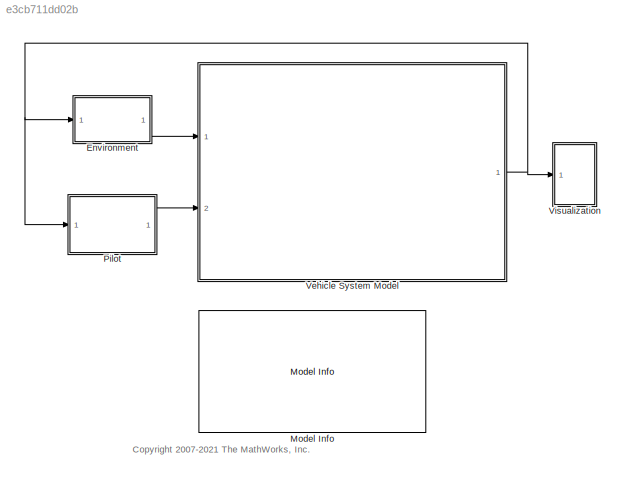
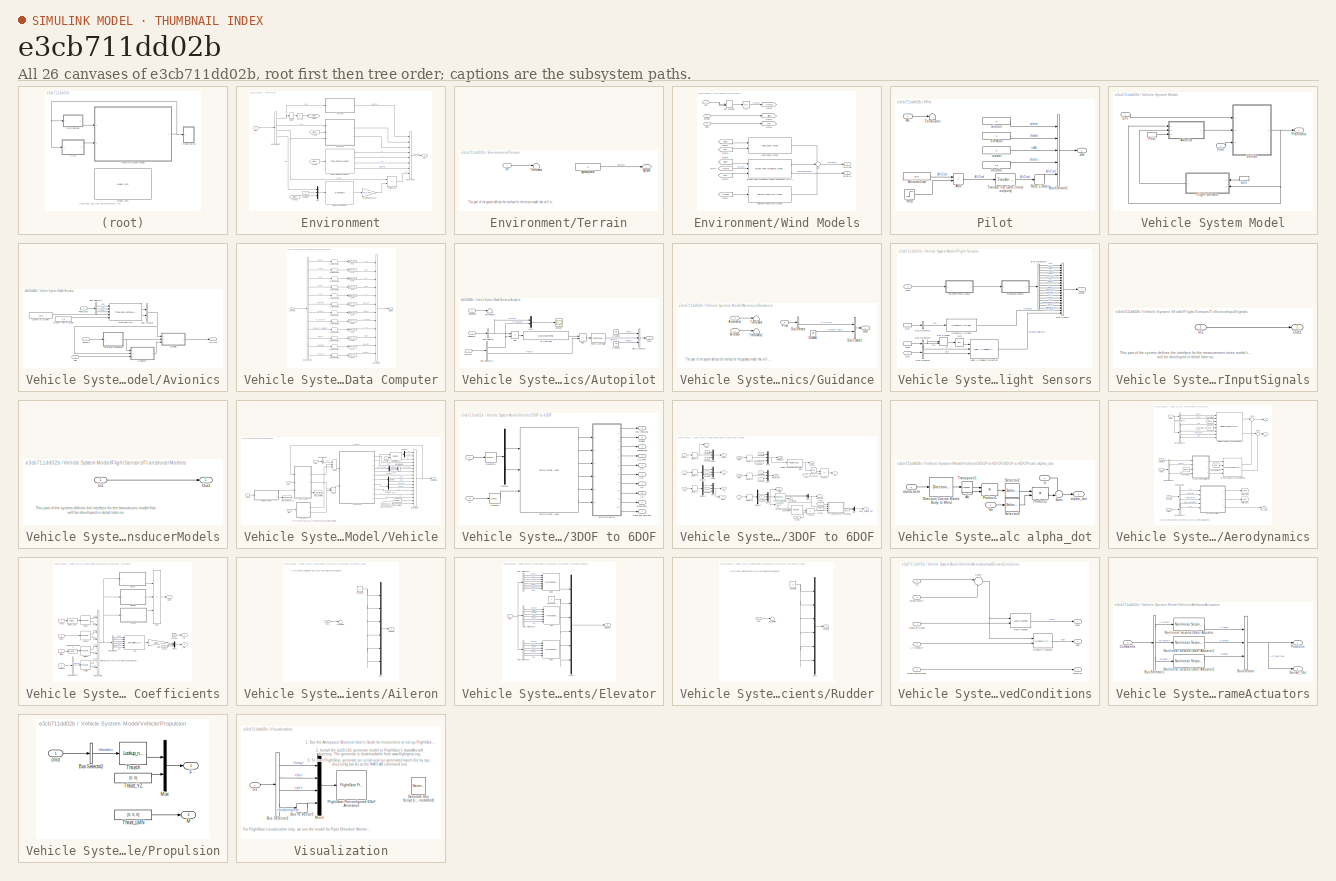
[diagram: thumbnail index - all 26 canvases of the model, root first then tree order]
MODEL slx_e3cb711dd02b
KIND model
CONFIG AbsTol = auto
CONFIG EnableMultiTasking = on
CONFIG FixedStep = auto
CONFIG MaxStep = auto
CONFIG MinStep = auto
CONFIG PreLoadFcn = load asbSkyHoggData.mat
CONFIG RelTol = 1e-3
CONFIG SampleTimeConstraint = Unconstrained
CONFIG Solver = ode45
CONFIG SolverName = ode45
CONFIG StartTime = 0.0
CONFIG StopFcn = open_system('asbSkyHogg/Vehicle System Model/Avionics/Autopilot/Altitude')
CONFIG StopTime = 100
WORKSPACE source: mxarray member
WORKSPACE LatLong0 = [45 120]
WORKSPACE Sref = 20.9775
WORKSPACE Tc = 0.0166666666667
WORKSPACE Thrust = 2512.574
WORKSPACE Ts = 0
WORKSPACE V0 = 93.1047999839
WORKSPACE alpha0 = 0.0170924
WORKSPACE alt0 = 2000
WORKSPACE beta0 = 0
WORKSPACE bref = 12.5425
WORKSPACE cbar = 1.7526
WORKSPACE cg_0 = [2.158 0 0]
WORKSPACE g_0 = [0 0 9.81]
WORKSPACE heading0 = 0
WORKSPACE inertia = [5787.969 0 -117.64 0 6928.93 0 117.64 0 11578.329]
WORKSPACE mass = 1299.21378662
WORKSPACE maxdef_aileron = 30
WORKSPACE maxdef_elevator = 20
WORKSPACE maxdef_rudder = 60
WORKSPACE mindef_aileron = -30
WORKSPACE mindef_elevator = -20
WORKSPACE mindef_rudder = -60
WORKSPACE mpoperpoint: opcond.OperatingPoint (value not decoded)
WORKSPACE theta0 = 0.017092
WORKSPACE wn_act = 44
WORKSPACE wy0 = 0
WORKSPACE z_act = 0.7
BLOCK [SubSystem] Environment
  Ports = [1, 1]
  TreatAsAtomicUnit = on
BLOCK [BusCreator] Environment/Bus Creator
  DisplayOption = bar
  InheritFromInputs = on
  Inputs = 'hground','WindVelocity','WindAngularRates','To','a','Po','AirDensity','Fg'
  Ports = [8, 1]
BLOCK [BusSelector] Environment/Bus Selector
  OutputSignals = Xe,Ve,DCM,lat
  Ports = [1, 4]
BLOCK [Reference] Environment/COESA Atmosphere Model  REF=aerolibatmos2/COESA Atmosphere Model
  Ports = [1, 4]
  SourceBlock = aerolibatmos2/COESA Atmosphere Model
  SourceType = Atmosphere Model
BLOCK [Outport] Environment/Env
  InitialOutput = 0
  VectorParamsAs1DForOutWhenUnconnected = off
BLOCK [From] Environment/From1
  GotoTag = Altitude
BLOCK [From] Environment/From2
  GotoTag = Altitude
BLOCK [From] Environment/From4
  GotoTag = Altitude
BLOCK [Goto] Environment/Goto6
  GotoTag = Altitude
BLOCK [Gain] Environment/Gravity in Earth Axes
  Gain = [0 0 mass]
  OutDataTypeStr = Inherit: Same as input
  ParamDataTypeStr = Inherit: Same as input
  SaturateOnIntegerOverflow = on
BLOCK [Selector] Environment/Height
  IndexMode = Zero-based
  IndexOptions = Index vector (dialog)
  Indices = 2
  InputPortWidth = 3
  OutputSizes = 1
  Ports = [1, 1]
BLOCK [Constant] Environment/Longitude
  Value = 0
BLOCK [Mux] Environment/Mux
  DisplayOption = bar
  Inputs = 3
  Ports = [3, 1]
BLOCK [SubSystem] Environment/Terrain
  Ports = [1, 1]
BLOCK [Terminator] Environment/Terrain/Terminator
BLOCK [Inport] Environment/Terrain/Xe
BLOCK [Outport] Environment/Terrain/hground
  Unit = m
  VectorParamsAs1DForOutWhenUnconnected = off
BLOCK [Constant] Environment/Terrain/hground_value
  OutDataTypeStr = single
  Value = 0
BLOCK [Product] Environment/To Wind Axes
  InputSameDT = on
  Multiplication = Matrix(*)
  OutDataTypeStr = Inherit: Same as first input
  Ports = [2, 1]
  SaturateOnIntegerOverflow = on
BLOCK [GravityWGS84] Environment/WGS84 Gravity Model  
  Ports = [1, 1]
BLOCK [SubSystem] Environment/Wind Models
  Ports = [3, 2]
BLOCK [Inport] Environment/Wind Models/Altitude
  NameLocation = top
  Port = 2
BLOCK [Inport] Environment/Wind Models/DCM
  Port = 3
BLOCK [Reference] Environment/Wind Models/Discrete Wind Gust Model  REF=aerolibwind2/Discrete Wind Gust Model
  Ports = [1, 1]
  SourceBlock = aerolibwind2/Discrete Wind Gust Model
  SourceType = Discrete Wind Gust Model
BLOCK [DotProduct] Environment/Wind Models/Dot Product
  InputSameDT = off
  OutDataTypeStr = Inherit: Inherit via internal rule
BLOCK [Reference] Environment/Wind Models/Dryden Wind Turbulence Model (Continuous (+q +r))  REF=aerolibwind2/Dryden Wind Turbulence Model 
(Continuous (+q -r))
  Ports = [3, 2]
  SourceBlock = aerolibwind2/Dryden Wind Turbulence Model \n(Continuous (+q -r))
  SourceType = Wind Turbulence Model
BLOCK [From] Environment/Wind Models/From1
  GotoTag = Airspeed
BLOCK [From] Environment/Wind Models/From2
  GotoTag = Altitude
BLOCK [From] Environment/Wind Models/From3
  GotoTag = DCM
BLOCK [From] Environment/Wind Models/From4
  GotoTag = Airspeed
BLOCK [From] Environment/Wind Models/From5
  GotoTag = DCM
BLOCK [From] Environment/Wind Models/From6
  GotoTag = Altitude
BLOCK [Goto] Environment/Wind Models/Goto1
  GotoTag = Altitude
BLOCK [Goto] Environment/Wind Models/Goto2
  GotoTag = DCM
BLOCK [Goto] Environment/Wind Models/Goto6
  GotoTag = Airspeed
BLOCK [Sum] Environment/Wind Models/Sum
  InputSameDT = on
  Inputs = +++
  OutDataTypeStr = Inherit: Same as first input
  Ports = [3, 1]
  SaturateOnIntegerOverflow = on
BLOCK [Inport] Environment/Wind Models/Ve
BLOCK [Reference] Environment/Wind Models/Wind Shear Model  REF=aerolibwind2/Wind Shear Model
  Ports = [2, 1]
  SourceBlock = aerolibwind2/Wind Shear Model
  SourceType = Wind Shear Model
BLOCK [Outport] Environment/Wind Models/pg,qg,rg
  Port = 2
  Unit = rad/second
  VectorParamsAs1DForOutWhenUnconnected = off
BLOCK [Outport] Environment/Wind Models/ug,vg,wg
  Unit = m/s
  VectorParamsAs1DForOutWhenUnconnected = off
BLOCK [Sqrt] Environment/Wind Models/vt
BLOCK [Inport] Environment/plant
BLOCK [Abs] Environment/z-->h
BLOCK [Reference] Model Info  REF=simulink/Model-Wide
Utilities/Model Info
  Ports = []
  SourceBlock = simulink/Model-Wide\nUtilities/Model Info
  SourceType = CMBlock
BLOCK [SubSystem] Pilot
  Ports = [1, 1]
  TreatAsAtomicUnit = on
BLOCK [Inport] Pilot/AC
BLOCK [Sum] Pilot/Add
  IconShape = rectangular
  Ports = [2, 1]
BLOCK [Constant] Pilot/AltitudeCmd
  OutDataTypeStr = double
  Value = alt0
BLOCK [BusCreator] Pilot/Bus Creator1
  DisplayOption = bar
  InheritFromInputs = on
  Inputs = 5
  Ports = [5, 1]
BLOCK [RateLimiter] Pilot/Rate Limiter
  InitialCondition = 2000
  RisingSlewLimit = 500/3/60
  SampleTimeMode = inherited
BLOCK [Step] Pilot/Step
  After = 50
  SampleTime = 0
  Time = 5
BLOCK [Terminator] Pilot/Terminator
BLOCK [Reference] Pilot/Transfer Fcn (with initial outputs)  REF=simulink_extras/Additional
Linear/Transfer Fcn
(with initial outputs)
  Ports = [1, 1]
  SourceBlock = simulink_extras/Additional\nLinear/Transfer Fcn\n(with initial outputs)
  SourceType = Transfer Function with Initial Outputs
BLOCK [Constant] Pilot/aileron
  OutDataTypeStr = single
  Value = 0
BLOCK [Outport] Pilot/cmd
  VectorParamsAs1DForOutWhenUnconnected = off
BLOCK [Constant] Pilot/elevator
  OutDataTypeStr = single
  Value = 0
BLOCK [Constant] Pilot/rudder
  OutDataTypeStr = single
  Value = 0
BLOCK [Constant] Pilot/throttle
  OutDataTypeStr = double
  Value = 0.5
BLOCK [SubSystem] Vehicle System Model
  Ports = [2, 1]
BLOCK [SubSystem] Vehicle System Model/Avionics
  Ports = [3, 1]
BLOCK [Outport] Vehicle System Model/Avionics/ActCmd
  VectorParamsAs1DForOutWhenUnconnected = off
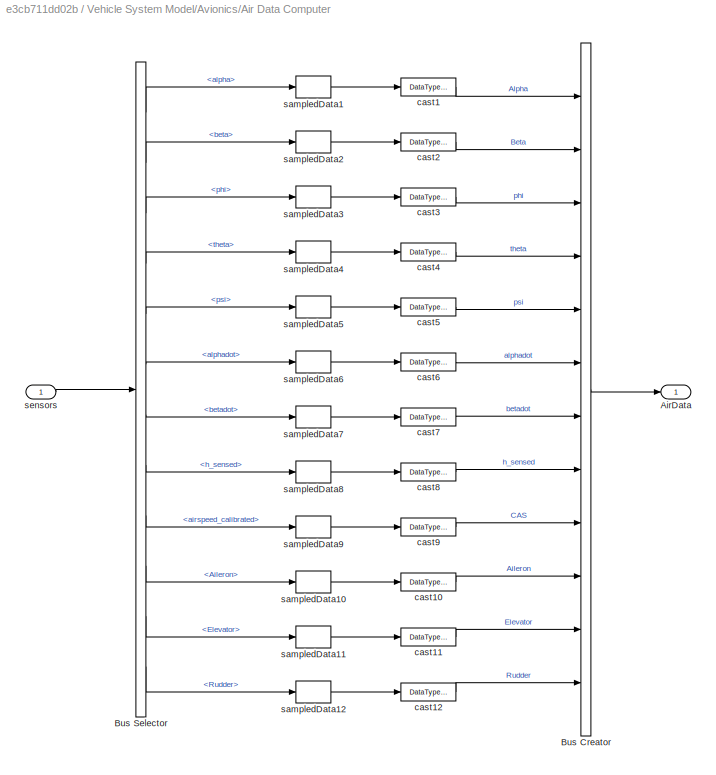
BLOCK [SubSystem] Vehicle System Model/Avionics/Air Data Computer
  Ports = [1, 1]
  TreatAsAtomicUnit = on
BLOCK [Outport] Vehicle System Model/Avionics/Air Data Computer/AirData
  VectorParamsAs1DForOutWhenUnconnected = off
BLOCK [BusCreator] Vehicle System Model/Avionics/Air Data Computer/Bus Creator
  DisplayOption = bar
  InheritFromInputs = on
  Inputs = 12
  Ports = [12, 1]
BLOCK [BusSelector] Vehicle System Model/Avionics/Air Data Computer/Bus Selector
  OutputSignals = alpha,beta,phi,theta,psi,alphadot,betadot,h_sensed,airspeed_calibrated,Aileron,Elevator,Rudder
  Ports = [1, 12]
BLOCK [DataTypeConversion] Vehicle System Model/Avionics/Air Data Computer/cast1
  OutDataTypeStr = double
  RndMeth = Floor
  SaturateOnIntegerOverflow = off
BLOCK [DataTypeConversion] Vehicle System Model/Avionics/Air Data Computer/cast10
  OutDataTypeStr = double
  RndMeth = Floor
  SaturateOnIntegerOverflow = off
BLOCK [DataTypeConversion] Vehicle System Model/Avionics/Air Data Computer/cast11
  OutDataTypeStr = double
  RndMeth = Floor
  SaturateOnIntegerOverflow = off
BLOCK [DataTypeConversion] Vehicle System Model/Avionics/Air Data Computer/cast12
  OutDataTypeStr = double
  RndMeth = Floor
  SaturateOnIntegerOverflow = off
BLOCK [DataTypeConversion] Vehicle System Model/Avionics/Air Data Computer/cast2
  OutDataTypeStr = double
  RndMeth = Floor
  SaturateOnIntegerOverflow = off
BLOCK [DataTypeConversion] Vehicle System Model/Avionics/Air Data Computer/cast3
  OutDataTypeStr = double
  RndMeth = Floor
  SaturateOnIntegerOverflow = off
BLOCK [DataTypeConversion] Vehicle System Model/Avionics/Air Data Computer/cast4
  OutDataTypeStr = double
  RndMeth = Floor
  SaturateOnIntegerOverflow = off
BLOCK [DataTypeConversion] Vehicle System Model/Avionics/Air Data Computer/cast5
  OutDataTypeStr = double
  RndMeth = Floor
  SaturateOnIntegerOverflow = off
BLOCK [DataTypeConversion] Vehicle System Model/Avionics/Air Data Computer/cast6
  OutDataTypeStr = double
  RndMeth = Floor
  SaturateOnIntegerOverflow = off
BLOCK [DataTypeConversion] Vehicle System Model/Avionics/Air Data Computer/cast7
  OutDataTypeStr = double
  RndMeth = Floor
  SaturateOnIntegerOverflow = off
BLOCK [DataTypeConversion] Vehicle System Model/Avionics/Air Data Computer/cast8
  OutDataTypeStr = double
  RndMeth = Floor
  SaturateOnIntegerOverflow = off
BLOCK [DataTypeConversion] Vehicle System Model/Avionics/Air Data Computer/cast9
  OutDataTypeStr = double
  RndMeth = Floor
  SaturateOnIntegerOverflow = off
BLOCK [ZeroOrderHold] Vehicle System Model/Avionics/Air Data Computer/sampledData1
  SampleTime = Tc
BLOCK [ZeroOrderHold] Vehicle System Model/Avionics/Air Data Computer/sampledData10
  SampleTime = Tc
BLOCK [ZeroOrderHold] Vehicle System Model/Avionics/Air Data Computer/sampledData11
  SampleTime = Tc
BLOCK [ZeroOrderHold] Vehicle System Model/Avionics/Air Data Computer/sampledData12
  SampleTime = Tc
BLOCK [ZeroOrderHold] Vehicle System Model/Avionics/Air Data Computer/sampledData2
  SampleTime = Tc
BLOCK [ZeroOrderHold] Vehicle System Model/Avionics/Air Data Computer/sampledData3
  SampleTime = Tc
BLOCK [ZeroOrderHold] Vehicle System Model/Avionics/Air Data Computer/sampledData4
  SampleTime = Tc
BLOCK [ZeroOrderHold] Vehicle System Model/Avionics/Air Data Computer/sampledData5
  SampleTime = Tc
BLOCK [ZeroOrderHold] Vehicle System Model/Avionics/Air Data Computer/sampledData6
  SampleTime = Tc
BLOCK [ZeroOrderHold] Vehicle System Model/Avionics/Air Data Computer/sampledData7
  SampleTime = Tc
BLOCK [ZeroOrderHold] Vehicle System Model/Avionics/Air Data Computer/sampledData8
  SampleTime = Tc
BLOCK [ZeroOrderHold] Vehicle System Model/Avionics/Air Data Computer/sampledData9
  SampleTime = Tc
BLOCK [Inport] Vehicle System Model/Avionics/Air Data Computer/sensors
  SampleTime = Ts
BLOCK [SubSystem] Vehicle System Model/Avionics/Autopilot
  Ports = [3, 1]
BLOCK [Sum] Vehicle System Model/Avionics/Autopilot/Add
  IconShape = rectangular
  Inputs = +-
  Ports = [2, 1]
BLOCK [Sum] Vehicle System Model/Avionics/Autopilot/Add1
  IconShape = rectangular
  Inputs = +-
  Ports = [2, 1]
BLOCK [Inport] Vehicle System Model/Avionics/Autopilot/AirData
  Port = 2
BLOCK [DiscreteZeroPole] Vehicle System Model/Avionics/Autopilot/Alt Controller
  Gain = 0.0337283240400683
  Poles = [1;0.920841826994512]
  SampleTime = Tc
  Zeros = [0.998853192323097;0.977076159863424]
BLOCK [Scope] Vehicle System Model/Avionics/Autopilot/Altitude
  Floating = off
  NumInputPorts = 1
  Ports = [1]
  ScopeSpecificationString = Simulink.scopes.TimeScopeBlockCfg('CurrentConfiguration', extmgr.ConfigurationSet(extmgr.Configuration('Core','General UI',true),extmgr.Configuration('Core','Source UI',true),extmgr.Configuration('Sources','WiredSimulink',true,'DataLoggingSaveFormat','StructureWithTime','DataLoggingDecimation','5','DataLoggingDecimateData',true),extmgr.Configuration('Visuals','Time Domain',true,'SerializedDisplays...<+1645ch>
BLOCK [Inport] Vehicle System Model/Avionics/Autopilot/AvionicBus
BLOCK [BusCreator] Vehicle System Model/Avionics/Autopilot/Bus Creator1
  DisplayOption = bar
  InheritFromInputs = on
  Inputs = 3
  Ports = [3, 1]
BLOCK [BusSelector] Vehicle System Model/Avionics/Autopilot/Bus Selector
  OutputSignals = AltCmd
  Ports = [1, 1]
BLOCK [BusSelector] Vehicle System Model/Avionics/Autopilot/Bus Selector1
  OutputSignals = h_sensed,theta
  Ports = [1, 2]
BLOCK [Ground] Vehicle System Model/Avionics/Autopilot/Ground
BLOCK [Ground] Vehicle System Model/Avionics/Autopilot/Ground2
BLOCK [Mux] Vehicle System Model/Avionics/Autopilot/Mux
  DisplayOption = bar
  Inputs = 2
  Ports = [2, 1]
BLOCK [Terminator] Vehicle System Model/Avionics/Autopilot/Terminator
BLOCK [DiscreteZeroPole] Vehicle System Model/Avionics/Autopilot/Theta Controller
  Gain = -261.8699347622
  Poles = 1
  SampleTime = Tc
  Zeros = 0.999268009521977
BLOCK [Outport] Vehicle System Model/Avionics/Autopilot/cmd
  VectorParamsAs1DForOutWhenUnconnected = off
BLOCK [Inport] Vehicle System Model/Avionics/Autopilot/guidance
  Port = 3
BLOCK [BusCreator] Vehicle System Model/Avionics/Bus Creator
  DisplayOption = bar
  InheritFromInputs = on
  Inputs = 2
  Ports = [2, 1]
BLOCK [BusSelector] Vehicle System Model/Avionics/Bus Selector1
  OutputSignals = Ab,w,wdot
  Ports = [1, 3]
BLOCK [Constant] Vehicle System Model/Avionics/Center of Gravity
  SampleTime = Tc
  Value = cg_0
BLOCK [Constant] Vehicle System Model/Avionics/Gravity (not in Accels)
  SampleTime = Tc
  Value = g_0
BLOCK [SubSystem] Vehicle System Model/Avionics/Guidance
  Ports = [3, 1]
BLOCK [Inport] Vehicle System Model/Avionics/Guidance/AirData
BLOCK [Inport] Vehicle System Model/Avionics/Guidance/AvionicBus
  Port = 2
BLOCK [BusCreator] Vehicle System Model/Avionics/Guidance/Bus Creator1
  DisplayOption = bar
  InheritFromInputs = on
  Inputs = 2
  Ports = [2, 1]
BLOCK [BusSelector] Vehicle System Model/Avionics/Guidance/Bus Selector
  OutputSignals = AltCmd
  Ports = [1, 1]
BLOCK [Ground] Vehicle System Model/Avionics/Guidance/Ground1
BLOCK [Inport] Vehicle System Model/Avionics/Guidance/Pilot
  Port = 3
BLOCK [Terminator] Vehicle System Model/Avionics/Guidance/Terminator
BLOCK [Terminator] Vehicle System Model/Avionics/Guidance/Terminator1
BLOCK [Outport] Vehicle System Model/Avionics/Guidance/cmd
  VectorParamsAs1DForOutWhenUnconnected = off
BLOCK [Inport] Vehicle System Model/Avionics/Pilot
  Port = 3
BLOCK [Inport] Vehicle System Model/Avionics/PlantData
BLOCK [Inport] Vehicle System Model/Avionics/Sensors
  Port = 2
BLOCK [Reference] Vehicle System Model/Avionics/Three-axis IMU  REF=aerolibnav/Three-axis Inertial
Measurement Unit
  Ports = [5, 2]
  SourceBlock = aerolibnav/Three-axis Inertial\nMeasurement Unit
  SourceType = Three-axis Inertial Measurement Unit
BLOCK [Inport] Vehicle System Model/Env
BLOCK [InportShadow] Vehicle System Model/Env 
BLOCK [SubSystem] Vehicle System Model/Flight Sensors
  Ports = [2, 1]
BLOCK [BusCreator] Vehicle System Model/Flight Sensors/Bus Creator
  DisplayOption = bar
  InheritFromInputs = on
  Inputs = 20
  Ports = [20, 1]
BLOCK [BusSelector] Vehicle System Model/Flight Sensors/Bus Selector
  OutputSignals = a,Po
  Ports = [1, 2]
BLOCK [BusSelector] Vehicle System Model/Flight Sensors/Bus Selector1
  OutputSignals = Po
  Ports = [1, 1]
BLOCK [BusSelector] Vehicle System Model/Flight Sensors/Bus Selector2
  OutputSignals = Vb
  Ports = [1, 1]
BLOCK [BusSelector] Vehicle System Model/Flight Sensors/Bus Selector3
  OutputSignals = Ve,Xe,body angles.phi,body angles.theta,body angles.psi,DCM,Vb,alpha,beta,alphadot,betadot,w,wdot,Ab,WindAngularRates,Act_positions.Aileron,Act_positions.Elevator,Act_positions.Rudder
  Ports = [1, 18]
BLOCK [DotProduct] Vehicle System Model/Flight Sensors/Dot Product
  OutDataTypeStr = Inherit: Inherit via internal rule
BLOCK [Inport] Vehicle System Model/Flight Sensors/Env
BLOCK [InportShadow] Vehicle System Model/Flight Sensors/Env 
BLOCK [Reference] Vehicle System Model/Flight Sensors/Ideal Airspeed Correction  REF=aerolibasang/Ideal Airspeed Correction
  Ports = [3, 1]
  SourceBlock = aerolibasang/Ideal Airspeed Correction
  SourceType = Ideal Airspeed Correction
BLOCK [Reference] Vehicle System Model/Flight Sensors/Pressure Altitude  REF=aerolibatmos2/Pressure Altitude
  Ports = [1, 1]
  SourceBlock = aerolibatmos2/Pressure Altitude
  SourceType = Pressure Altitude
BLOCK [Sqrt] Vehicle System Model/Flight Sensors/Sqrt
BLOCK [SubSystem] Vehicle System Model/Flight Sensors/ToSensorInputSignals
  Ports = [1, 1]
BLOCK [Inport] Vehicle System Model/Flight Sensors/ToSensorInputSignals/In1
BLOCK [Outport] Vehicle System Model/Flight Sensors/ToSensorInputSignals/Out1
  VectorParamsAs1DForOutWhenUnconnected = off
BLOCK [SubSystem] Vehicle System Model/Flight Sensors/TransducerModels
  Ports = [1, 1]
BLOCK [Inport] Vehicle System Model/Flight Sensors/TransducerModels/In1
BLOCK [Outport] Vehicle System Model/Flight Sensors/TransducerModels/Out1
  VectorParamsAs1DForOutWhenUnconnected = off
BLOCK [Inport] Vehicle System Model/Flight Sensors/plant
  Port = 2
BLOCK [InportShadow] Vehicle System Model/Flight Sensors/plant 
  Port = 2
BLOCK [Outport] Vehicle System Model/Flight Sensors/sensed
  VectorParamsAs1DForOutWhenUnconnected = off
BLOCK [Inport] Vehicle System Model/Pilot
  Port = 2
BLOCK [InportShadow] Vehicle System Model/Pilot 
  Port = 2
BLOCK [Outport] Vehicle System Model/PlantData
  VectorParamsAs1DForOutWhenUnconnected = off
BLOCK [SubSystem] Vehicle System Model/Vehicle
  Ports = [3, 1]
BLOCK [SubSystem] Vehicle System Model/Vehicle/3DOF to 6DOF
  Ports = [2, 10]
BLOCK [Reference] Vehicle System Model/Vehicle/3DOF to 6DOF/3DOF (Body Axes)  REF=shared3dof/3DOF (Body Axes)
  Ports = [3, 6]
  SourceBlock = shared3dof/3DOF (Body Axes)
  SourceType = 3DOF EoM
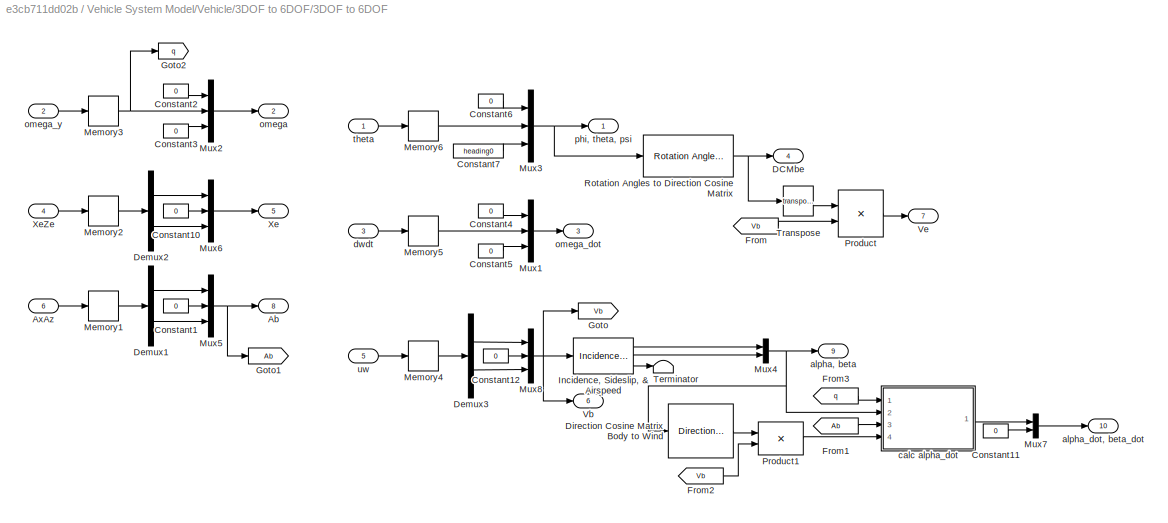
BLOCK [SubSystem] Vehicle System Model/Vehicle/3DOF to 6DOF/3DOF to 6DOF
  Ports = [6, 10]
BLOCK [Outport] Vehicle System Model/Vehicle/3DOF to 6DOF/3DOF to 6DOF/Ab
  Port = 8
  Unit = m/s^2
  VectorParamsAs1DForOutWhenUnconnected = off
BLOCK [Inport] Vehicle System Model/Vehicle/3DOF to 6DOF/3DOF to 6DOF/AxAz
  Port = 6
BLOCK [Constant] Vehicle System Model/Vehicle/3DOF to 6DOF/3DOF to 6DOF/Constant1
  Value = 0
BLOCK [Constant] Vehicle System Model/Vehicle/3DOF to 6DOF/3DOF to 6DOF/Constant10
  Value = 0
BLOCK [Constant] Vehicle System Model/Vehicle/3DOF to 6DOF/3DOF to 6DOF/Constant11
  Value = 0
BLOCK [Constant] Vehicle System Model/Vehicle/3DOF to 6DOF/3DOF to 6DOF/Constant12
  Value = 0
BLOCK [Constant] Vehicle System Model/Vehicle/3DOF to 6DOF/3DOF to 6DOF/Constant2
  Value = 0
BLOCK [Constant] Vehicle System Model/Vehicle/3DOF to 6DOF/3DOF to 6DOF/Constant3
  Value = 0
BLOCK [Constant] Vehicle System Model/Vehicle/3DOF to 6DOF/3DOF to 6DOF/Constant4
  Value = 0
BLOCK [Constant] Vehicle System Model/Vehicle/3DOF to 6DOF/3DOF to 6DOF/Constant5
  Value = 0
BLOCK [Constant] Vehicle System Model/Vehicle/3DOF to 6DOF/3DOF to 6DOF/Constant6
  Value = 0
BLOCK [Constant] Vehicle System Model/Vehicle/3DOF to 6DOF/3DOF to 6DOF/Constant7
  Value = heading0
BLOCK [Outport] Vehicle System Model/Vehicle/3DOF to 6DOF/3DOF to 6DOF/DCMbe
  Port = 4
  VectorParamsAs1DForOutWhenUnconnected = off
BLOCK [Demux] Vehicle System Model/Vehicle/3DOF to 6DOF/3DOF to 6DOF/Demux1
  Outputs = 2
  Ports = [1, 2]
BLOCK [Demux] Vehicle System Model/Vehicle/3DOF to 6DOF/3DOF to 6DOF/Demux2
  Outputs = 2
  Ports = [1, 2]
BLOCK [Demux] Vehicle System Model/Vehicle/3DOF to 6DOF/3DOF to 6DOF/Demux3
  Outputs = 2
  Ports = [1, 2]
BLOCK [Reference] Vehicle System Model/Vehicle/3DOF to 6DOF/3DOF to 6DOF/Direction Cosine Matrix Body to Wind  REF=aerolibtransform2/Direction Cosine Matrix
Body to Wind
  Ports = [1, 1]
  SourceBlock = aerolibtransform2/Direction Cosine Matrix\nBody to Wind
  SourceType = DCM Body to Wind
BLOCK [From] Vehicle System Model/Vehicle/3DOF to 6DOF/3DOF to 6DOF/From
  GotoTag = Vb
BLOCK [From] Vehicle System Model/Vehicle/3DOF to 6DOF/3DOF to 6DOF/From1
  GotoTag = Ab
BLOCK [From] Vehicle System Model/Vehicle/3DOF to 6DOF/3DOF to 6DOF/From2
  GotoTag = Vb
BLOCK [From] Vehicle System Model/Vehicle/3DOF to 6DOF/3DOF to 6DOF/From3
  GotoTag = q
BLOCK [Goto] Vehicle System Model/Vehicle/3DOF to 6DOF/3DOF to 6DOF/Goto
  GotoTag = Vb
BLOCK [Goto] Vehicle System Model/Vehicle/3DOF to 6DOF/3DOF to 6DOF/Goto1
  GotoTag = Ab
BLOCK [Goto] Vehicle System Model/Vehicle/3DOF to 6DOF/3DOF to 6DOF/Goto2
  GotoTag = q
BLOCK [Reference] Vehicle System Model/Vehicle/3DOF to 6DOF/3DOF to 6DOF/Incidence, Sideslip, & Airspeed  REF=aerolibasang/Incidence, Sideslip,
& Airspeed
  Ports = [1, 3]
  SourceBlock = aerolibasang/Incidence, Sideslip,\n& Airspeed
  SourceType = Incidence,Sideslip,&Airspeed
BLOCK [Memory] Vehicle System Model/Vehicle/3DOF to 6DOF/3DOF to 6DOF/Memory1
BLOCK [Memory] Vehicle System Model/Vehicle/3DOF to 6DOF/3DOF to 6DOF/Memory2
  InitialCondition = [0 -alt0]
BLOCK [Memory] Vehicle System Model/Vehicle/3DOF to 6DOF/3DOF to 6DOF/Memory3
  InitialCondition = wy0
BLOCK [Memory] Vehicle System Model/Vehicle/3DOF to 6DOF/3DOF to 6DOF/Memory4
  InitialCondition = [V0 0]
BLOCK [Memory] Vehicle System Model/Vehicle/3DOF to 6DOF/3DOF to 6DOF/Memory5
BLOCK [Memory] Vehicle System Model/Vehicle/3DOF to 6DOF/3DOF to 6DOF/Memory6
  InitialCondition = theta0
BLOCK [Mux] Vehicle System Model/Vehicle/3DOF to 6DOF/3DOF to 6DOF/Mux1
  DisplayOption = bar
  Inputs = 3
  Ports = [3, 1]
BLOCK [Mux] Vehicle System Model/Vehicle/3DOF to 6DOF/3DOF to 6DOF/Mux2
  DisplayOption = bar
  Inputs = 3
  Ports = [3, 1]
BLOCK [Mux] Vehicle System Model/Vehicle/3DOF to 6DOF/3DOF to 6DOF/Mux3
  DisplayOption = bar
  Inputs = 3
  Ports = [3, 1]
BLOCK [Mux] Vehicle System Model/Vehicle/3DOF to 6DOF/3DOF to 6DOF/Mux4
  DisplayOption = bar
  Inputs = 2
  Ports = [2, 1]
BLOCK [Mux] Vehicle System Model/Vehicle/3DOF to 6DOF/3DOF to 6DOF/Mux5
  DisplayOption = bar
  Inputs = 3
  Ports = [3, 1]
BLOCK [Mux] Vehicle System Model/Vehicle/3DOF to 6DOF/3DOF to 6DOF/Mux6
  DisplayOption = bar
  Inputs = 3
  Ports = [3, 1]
BLOCK [Mux] Vehicle System Model/Vehicle/3DOF to 6DOF/3DOF to 6DOF/Mux7
  DisplayOption = bar
  Inputs = 2
  Ports = [2, 1]
BLOCK [Mux] Vehicle System Model/Vehicle/3DOF to 6DOF/3DOF to 6DOF/Mux8
  DisplayOption = bar
  Inputs = 3
  Ports = [3, 1]
BLOCK [Product] Vehicle System Model/Vehicle/3DOF to 6DOF/3DOF to 6DOF/Product
  InputSameDT = on
  Multiplication = Matrix(*)
  OutDataTypeStr = Inherit: Same as first input
  Ports = [2, 1]
  SaturateOnIntegerOverflow = on
BLOCK [Product] Vehicle System Model/Vehicle/3DOF to 6DOF/3DOF to 6DOF/Product1
  InputSameDT = on
  Multiplication = Matrix(*)
  OutDataTypeStr = Inherit: Same as first input
  Ports = [2, 1]
  SaturateOnIntegerOverflow = on
BLOCK [Reference] Vehicle System Model/Vehicle/3DOF to 6DOF/3DOF to 6DOF/Rotation Angles to Direction Cosine Matrix  REF=sharedtransform/Rotation Angles to
Direction Cosine Matrix
  AttributesFormatString = Rotation Order: %<rotationOrder>
  Ports = [1, 1]
  SourceBlock = sharedtransform/Rotation Angles to\nDirection Cosine Matrix
  SourceType = Ang2DCM
BLOCK [Terminator] Vehicle System Model/Vehicle/3DOF to 6DOF/3DOF to 6DOF/Terminator
BLOCK [Math] Vehicle System Model/Vehicle/3DOF to 6DOF/3DOF to 6DOF/Transpose
  Operator = transpose
  Ports = [1, 1]
  SignedPower = on
BLOCK [Outport] Vehicle System Model/Vehicle/3DOF to 6DOF/3DOF to 6DOF/Vb
  Port = 6
  Unit = m/s
  VectorParamsAs1DForOutWhenUnconnected = off
BLOCK [Outport] Vehicle System Model/Vehicle/3DOF to 6DOF/3DOF to 6DOF/Ve
  Port = 7
  Unit = m/s
  VectorParamsAs1DForOutWhenUnconnected = off
BLOCK [Outport] Vehicle System Model/Vehicle/3DOF to 6DOF/3DOF to 6DOF/Xe
  Port = 5
  Unit = m
  VectorParamsAs1DForOutWhenUnconnected = off
BLOCK [Inport] Vehicle System Model/Vehicle/3DOF to 6DOF/3DOF to 6DOF/XeZe
  Port = 4
BLOCK [Outport] Vehicle System Model/Vehicle/3DOF to 6DOF/3DOF to 6DOF/alpha, beta
  Port = 9
  Unit = rad
  VectorParamsAs1DForOutWhenUnconnected = off
BLOCK [Outport] Vehicle System Model/Vehicle/3DOF to 6DOF/3DOF to 6DOF/alpha_dot, beta_dot
  Port = 10
  Unit = rad/s
  VectorParamsAs1DForOutWhenUnconnected = off
BLOCK [SubSystem] Vehicle System Model/Vehicle/3DOF to 6DOF/3DOF to 6DOF/calc alpha_dot
  Ports = [4, 1]
BLOCK [Inport] Vehicle System Model/Vehicle/3DOF to 6DOF/3DOF to 6DOF/calc alpha_dot/Ab
  Port = 3
BLOCK [Reference] Vehicle System Model/Vehicle/3DOF to 6DOF/3DOF to 6DOF/calc alpha_dot/Direction Cosine Matrix Body to Wind  REF=aerolibtransform2/Direction Cosine Matrix
Body to Wind
  Ports = [1, 1]
  SourceBlock = aerolibtransform2/Direction Cosine Matrix\nBody to Wind
  SourceType = DCM Body to Wind
BLOCK [Product] Vehicle System Model/Vehicle/3DOF to 6DOF/3DOF to 6DOF/calc alpha_dot/Product1
  InputSameDT = on
  Multiplication = Matrix(*)
  OutDataTypeStr = Inherit: Same as first input
  Ports = [2, 1]
  SaturateOnIntegerOverflow = on
BLOCK [Product] Vehicle System Model/Vehicle/3DOF to 6DOF/3DOF to 6DOF/calc alpha_dot/Product2
  InputSameDT = on
  Inputs = */
  OutDataTypeStr = Inherit: Same as first input
  Ports = [2, 1]
  SaturateOnIntegerOverflow = on
BLOCK [Selector] Vehicle System Model/Vehicle/3DOF to 6DOF/3DOF to 6DOF/calc alpha_dot/Selector2
  IndexMode = Zero-based
  IndexOptions = Index vector (dialog)
  Indices = 2
  InputPortWidth = 3
  OutputSizes = 1
  Ports = [1, 1]
BLOCK [Selector] Vehicle System Model/Vehicle/3DOF to 6DOF/3DOF to 6DOF/calc alpha_dot/Selector3
  IndexMode = Zero-based
  IndexOptions = Index vector (dialog)
  Indices = 0
  InputPortWidth = 3
  OutputSizes = 1
  Ports = [1, 1]
BLOCK [Sum] Vehicle System Model/Vehicle/3DOF to 6DOF/3DOF to 6DOF/calc alpha_dot/Sum
  Inputs = ++|
  Ports = [2, 1]
BLOCK [Math] Vehicle System Model/Vehicle/3DOF to 6DOF/3DOF to 6DOF/calc alpha_dot/Transpose1
  Operator = transpose
  Ports = [1, 1]
  SignedPower = on
BLOCK [Inport] Vehicle System Model/Vehicle/3DOF to 6DOF/3DOF to 6DOF/calc alpha_dot/Vw
  Port = 4
BLOCK [Inport] Vehicle System Model/Vehicle/3DOF to 6DOF/3DOF to 6DOF/calc alpha_dot/alpha,beta
  Port = 2
BLOCK [Outport] Vehicle System Model/Vehicle/3DOF to 6DOF/3DOF to 6DOF/calc alpha_dot/alpha_dot
  VectorParamsAs1DForOutWhenUnconnected = off
BLOCK [Inport] Vehicle System Model/Vehicle/3DOF to 6DOF/3DOF to 6DOF/calc alpha_dot/q
BLOCK [Inport] Vehicle System Model/Vehicle/3DOF to 6DOF/3DOF to 6DOF/dwdt
  Port = 3
BLOCK [Outport] Vehicle System Model/Vehicle/3DOF to 6DOF/3DOF to 6DOF/omega
  Port = 2
  Unit = rad/s
  VectorParamsAs1DForOutWhenUnconnected = off
BLOCK [Outport] Vehicle System Model/Vehicle/3DOF to 6DOF/3DOF to 6DOF/omega_dot
  Port = 3
  Unit = rad/s^2
  VectorParamsAs1DForOutWhenUnconnected = off
BLOCK [Inport] Vehicle System Model/Vehicle/3DOF to 6DOF/3DOF to 6DOF/omega_y
  Port = 2
BLOCK [Outport] Vehicle System Model/Vehicle/3DOF to 6DOF/3DOF to 6DOF/phi, theta, psi
  Unit = rad
  VectorParamsAs1DForOutWhenUnconnected = off
BLOCK [Inport] Vehicle System Model/Vehicle/3DOF to 6DOF/3DOF to 6DOF/theta
BLOCK [Inport] Vehicle System Model/Vehicle/3DOF to 6DOF/3DOF to 6DOF/uw
  Port = 5
BLOCK [Outport] Vehicle System Model/Vehicle/3DOF to 6DOF/Ab
  Port = 10
  Unit = m/s^2
  VectorParamsAs1DForOutWhenUnconnected = off
BLOCK [Outport] Vehicle System Model/Vehicle/3DOF to 6DOF/DCMbe
  Port = 4
  VectorParamsAs1DForOutWhenUnconnected = off
BLOCK [Demux] Vehicle System Model/Vehicle/3DOF to 6DOF/Demux
  Outputs = 2
  Ports = [1, 2]
BLOCK [Inport] Vehicle System Model/Vehicle/3DOF to 6DOF/F
BLOCK [Inport] Vehicle System Model/Vehicle/3DOF to 6DOF/M
  Port = 2
BLOCK [Selector] Vehicle System Model/Vehicle/3DOF to 6DOF/Selector
  IndexMode = Zero-based
  IndexOptions = Index vector (dialog)
  Indices = 1
  InputPortWidth = 3
  OutputSizes = 1
  Ports = [1, 1]
BLOCK [Selector] Vehicle System Model/Vehicle/3DOF to 6DOF/Selector1
  IndexMode = Zero-based
  IndexOptions = Index vector (dialog)
  Indices = [0 2]
  InputPortWidth = 3
  OutputSizes = 1
  Ports = [1, 1]
BLOCK [Outport] Vehicle System Model/Vehicle/3DOF to 6DOF/Vb
  Port = 5
  Unit = m/s
  VectorParamsAs1DForOutWhenUnconnected = off
BLOCK [Outport] Vehicle System Model/Vehicle/3DOF to 6DOF/Ve
  Unit = m/s
  VectorParamsAs1DForOutWhenUnconnected = off
BLOCK [Outport] Vehicle System Model/Vehicle/3DOF to 6DOF/Xe
  Port = 2
  Unit = m
  VectorParamsAs1DForOutWhenUnconnected = off
BLOCK [Outport] Vehicle System Model/Vehicle/3DOF to 6DOF/alpha,beta
  Port = 6
  Unit = rad
  VectorParamsAs1DForOutWhenUnconnected = off
BLOCK [Outport] Vehicle System Model/Vehicle/3DOF to 6DOF/alpha_dot,beta_dot
  Port = 7
  Unit = rad/s
  VectorParamsAs1DForOutWhenUnconnected = off
BLOCK [Outport] Vehicle System Model/Vehicle/3DOF to 6DOF/omega
  Port = 8
  Unit = rad/s
  VectorParamsAs1DForOutWhenUnconnected = off
BLOCK [Outport] Vehicle System Model/Vehicle/3DOF to 6DOF/omega_dot
  Port = 9
  Unit = rad/s^2
  VectorParamsAs1DForOutWhenUnconnected = off
BLOCK [Outport] Vehicle System Model/Vehicle/3DOF to 6DOF/phi,theta,psi
  Port = 3
  Unit = rad
  VectorParamsAs1DForOutWhenUnconnected = off
BLOCK [Inport] Vehicle System Model/Vehicle/ActCmd
  Port = 2
BLOCK [SubSystem] Vehicle System Model/Vehicle/Aerodynamics
  Ports = [3, 3]
BLOCK [Inport] Vehicle System Model/Vehicle/Aerodynamics/Actuators
  Port = 3
BLOCK [SubSystem] Vehicle System Model/Vehicle/Aerodynamics/Aerodynamic Coefficients
  NameLocation = top
  Ports = [4, 3]
BLOCK [PreLookup] Vehicle System Model/Vehicle/Aerodynamics/Aerodynamic Coefficients/(Mach)
  BeginIndexSearchUsingPreviousIndexResult = on
  BreakpointsData = statdyn{1}.mach
  ExtrapMethod = Linear
  FractionDataTypeStr = double
  IndexDataTypeStr = int32
  InputPortMap = u0
  Ports = [1, 2]
BLOCK [PreLookup] Vehicle System Model/Vehicle/Aerodynamics/Aerodynamic Coefficients/(alpha)
  BeginIndexSearchUsingPreviousIndexResult = on
  BreakpointsData = statdyn{1}.alpha
  ExtrapMethod = Linear
  FractionDataTypeStr = double
  IndexDataTypeStr = int32
  InputPortMap = u0
  Ports = [1, 2]
BLOCK [PreLookup] Vehicle System Model/Vehicle/Aerodynamics/Aerodynamic Coefficients/(altitude)
  BeginIndexSearchUsingPreviousIndexResult = on
  BreakpointsData = statdyn{1}.alt
  ExtrapMethod = Linear
  FractionDataTypeStr = double
  IndexDataTypeStr = int32
  InputPortMap = u0
  Ports = [1, 2]
BLOCK [PreLookup] Vehicle System Model/Vehicle/Aerodynamics/Aerodynamic Coefficients/(delta)
  BeginIndexSearchUsingPreviousIndexResult = on
  BreakpointsData = statdyn{1}.delta
  ExtrapMethod = Linear
  FractionDataTypeStr = double
  IndexDataTypeStr = int32
  InputPortMap = u0
  Ports = [1, 2]
BLOCK [Inport] Vehicle System Model/Vehicle/Aerodynamics/Aerodynamic Coefficients/Actuators
BLOCK [SubSystem] Vehicle System Model/Vehicle/Aerodynamics/Aerodynamic Coefficients/Aileron
  Ports = [1, 1]
BLOCK [Inport] Vehicle System Model/Vehicle/Aerodynamics/Aerodynamic Coefficients/Aileron/Bus
BLOCK [Constant] Vehicle System Model/Vehicle/Aerodynamics/Aerodynamic Coefficients/Aileron/Constant1
  Value = 0
BLOCK [Mux] Vehicle System Model/Vehicle/Aerodynamics/Aerodynamic Coefficients/Aileron/Mux1
  Inputs = 6
  Ports = [6, 1]
BLOCK [Terminator] Vehicle System Model/Vehicle/Aerodynamics/Aerodynamic Coefficients/Aileron/Terminator
BLOCK [Outport] Vehicle System Model/Vehicle/Aerodynamics/Aerodynamic Coefficients/Aileron/delCoeff
  VectorParamsAs1DForOutWhenUnconnected = off
BLOCK [Inport] Vehicle System Model/Vehicle/Aerodynamics/Aerodynamic Coefficients/Alpha
  Port = 2
BLOCK [Inport] Vehicle System Model/Vehicle/Aerodynamics/Aerodynamic Coefficients/Altitude
  Port = 4
BLOCK [BusCreator] Vehicle System Model/Vehicle/Aerodynamics/Aerodynamic Coefficients/Bus Creator
  DisplayOption = bar
  InheritFromInputs = on
  Inputs = 8
  Ports = [8, 1]
BLOCK [BusSelector] Vehicle System Model/Vehicle/Aerodynamics/Aerodynamic Coefficients/Bus Selector
  OutputSignals = idxa,fa,idxm,fm,idxh,fh
  Ports = [1, 6]
BLOCK [BusSelector] Vehicle System Model/Vehicle/Aerodynamics/Aerodynamic Coefficients/Bus Selector5
  OutputSignals = Elevator
  Ports = [1, 1]
BLOCK [Outport] Vehicle System Model/Vehicle/Aerodynamics/Aerodynamic Coefficients/CG
  InitialOutput = 0
  Port = 2
  PortDimensions = 3
  VectorParamsAs1DForOutWhenUnconnected = off
BLOCK [Outport] Vehicle System Model/Vehicle/Aerodynamics/Aerodynamic Coefficients/CP
  InitialOutput = 0
  Port = 3
  PortDimensions = 3
  VectorParamsAs1DForOutWhenUnconnected = off
BLOCK [Outport] Vehicle System Model/Vehicle/Aerodynamics/Aerodynamic Coefficients/Coeff
  InitialOutput = 0
  VectorParamsAs1DForOutWhenUnconnected = off
BLOCK [SubSystem] Vehicle System Model/Vehicle/Aerodynamics/Aerodynamic Coefficients/Elevator
  Ports = [1, 1]
BLOCK [Inport] Vehicle System Model/Vehicle/Aerodynamics/Aerodynamic Coefficients/Elevator/Bus
  NameLocation = top
BLOCK [BusSelector] Vehicle System Model/Vehicle/Aerodynamics/Aerodynamic Coefficients/Elevator/Bus Selector2
  OutputSignals = idxa,fa,idxm,fm,idxh,fh,idxde,fde
  Ports = [1, 8]
BLOCK [BusSelector] Vehicle System Model/Vehicle/Aerodynamics/Aerodynamic Coefficients/Elevator/Bus Selector3
  OutputSignals = idxde,fde,idxm,fm,idxh,fh
  Ports = [1, 6]
BLOCK [BusSelector] Vehicle System Model/Vehicle/Aerodynamics/Aerodynamic Coefficients/Elevator/Bus Selector5
  OutputSignals = idxde,fde,idxm,fm,idxh,fh
  Ports = [1, 6]
BLOCK [Constant] Vehicle System Model/Vehicle/Aerodynamics/Aerodynamic Coefficients/Elevator/Constant1
  Value = 0
BLOCK [Interpolation_n-D] Vehicle System Model/Vehicle/Aerodynamics/Aerodynamic Coefficients/Elevator/DCDI
  InputPortMap = u0,u1,u2,u3,u4,u5,u6,u7
  NumberOfTableDimensions = 4
  Ports = [8, 1]
  RemoveProtectionIndex = on
  Table = permute(statdyn{1}.dcdi_sym,[1 3 4 2 ])
BLOCK [Interpolation_n-D] Vehicle System Model/Vehicle/Aerodynamics/Aerodynamic Coefficients/Elevator/DCL
  InputPortMap = u0,u1,u2,u3,u4,u5
  NumberOfTableDimensions = 3
  Ports = [6, 1]
  RemoveProtectionIndex = on
  Table = permute(statdyn{1}.dcl_sym,[1  2  3])
BLOCK [Interpolation_n-D] Vehicle System Model/Vehicle/Aerodynamics/Aerodynamic Coefficients/Elevator/DCm
  InputPortMap = u0,u1,u2,u3,u4,u5
  NumberOfTableDimensions = 3
  Ports = [6, 1]
  RemoveProtectionIndex = on
  Table = permute(statdyn{1}.dcm_sym,[1  2  3])
BLOCK [Mux] Vehicle System Model/Vehicle/Aerodynamics/Aerodynamic Coefficients/Elevator/Mux1
  Inputs = 6
  Ports = [6, 1]
BLOCK [Outport] Vehicle System Model/Vehicle/Aerodynamics/Aerodynamic Coefficients/Elevator/delCoeff
  VectorParamsAs1DForOutWhenUnconnected = off
BLOCK [Gain] Vehicle System Model/Vehicle/Aerodynamics/Aerodynamic Coefficients/Gain
  Gain = cbar
BLOCK [Ground] Vehicle System Model/Vehicle/Aerodynamics/Aerodynamic Coefficients/Ground
BLOCK [Reference] Vehicle System Model/Vehicle/Aerodynamics/Aerodynamic Coefficients/Length Conversion1  REF=aerolibconvert2/Length Conversion
  Ports = [1, 1]
  SourceBlock = aerolibconvert2/Length Conversion
  SourceType = Length Conversion
BLOCK [Inport] Vehicle System Model/Vehicle/Aerodynamics/Aerodynamic Coefficients/Mach
  Port = 3
BLOCK [Mux] Vehicle System Model/Vehicle/Aerodynamics/Aerodynamic Coefficients/Mux3
  DisplayOption = bar
  Inputs = 3
  Ports = [3, 1]
BLOCK [SubSystem] Vehicle System Model/Vehicle/Aerodynamics/Aerodynamic Coefficients/Rudder
  Ports = [1, 1]
BLOCK [Inport] Vehicle System Model/Vehicle/Aerodynamics/Aerodynamic Coefficients/Rudder/Bus
BLOCK [Constant] Vehicle System Model/Vehicle/Aerodynamics/Aerodynamic Coefficients/Rudder/Constant1
  Value = 0
BLOCK [Mux] Vehicle System Model/Vehicle/Aerodynamics/Aerodynamic Coefficients/Rudder/Mux1
  Inputs = 6
  Ports = [6, 1]
BLOCK [Terminator] Vehicle System Model/Vehicle/Aerodynamics/Aerodynamic Coefficients/Rudder/Terminator
BLOCK [Outport] Vehicle System Model/Vehicle/Aerodynamics/Aerodynamic Coefficients/Rudder/delCoeff
  VectorParamsAs1DForOutWhenUnconnected = off
BLOCK [Sum] Vehicle System Model/Vehicle/Aerodynamics/Aerodynamic Coefficients/Sum
  IconShape = rectangular
  InputSameDT = on
  Inputs = 3
  OutDataTypeStr = Inherit: Same as first input
  Ports = [3, 1]
  SaturateOnIntegerOverflow = on
BLOCK [Interpolation_n-D] Vehicle System Model/Vehicle/Aerodynamics/Aerodynamic Coefficients/Xcp
  InputPortMap = u0,u1,u2,u3,u4,u5
  NumberOfTableDimensions = 3
  OutDataTypeStr = double
  Ports = [6, 1]
  Table = permute(statdyn{1}.xcp,[1  2  3])
BLOCK [Reference] Vehicle System Model/Vehicle/Aerodynamics/Aerodynamic Coefficients/alpha_rad1  REF=aerolibconvert2/Angle Conversion
  NameLocation = top
  Ports = [1, 1]
  SourceBlock = aerolibconvert2/Angle Conversion
  SourceType = Angle Conversion
BLOCK [Constant] Vehicle System Model/Vehicle/Aerodynamics/Aerodynamic Coefficients/zero1
  Value = 0
BLOCK [Reference] Vehicle System Model/Vehicle/Aerodynamics/Aerodynamic Forces and Moments   REF=aerolibadyn/Aerodynamic
Forces and Moments 
  Ports = [4, 2]
  SourceBlock = aerolibadyn/Aerodynamic\nForces and Moments
  SourceType = Aerodynamic Forces and Moments
BLOCK [BusSelector] Vehicle System Model/Vehicle/Aerodynamics/Bus Selector
  OutputSignals = a,AirDensity,WindVelocity,WindAngularRates
  Ports = [1, 4]
BLOCK [BusSelector] Vehicle System Model/Vehicle/Aerodynamics/Bus Selector1
  OutputSignals = Vb
  Ports = [1, 1]
BLOCK [BusSelector] Vehicle System Model/Vehicle/Aerodynamics/Bus Selector2
  OutputSignals = alpha,beta
  Ports = [1, 2]
BLOCK [BusSelector] Vehicle System Model/Vehicle/Aerodynamics/Bus Selector3
  OutputSignals = alpha,alt
  Ports = [1, 2]
BLOCK [BusSelector] Vehicle System Model/Vehicle/Aerodynamics/Bus Selector4
  OutputSignals = alt,Vb,alphadot,w
  Ports = [1, 4]
BLOCK [SubSystem] Vehicle System Model/Vehicle/Aerodynamics/DerivedConditions
  Ports = [5, 3]
BLOCK [Inport] Vehicle System Model/Vehicle/Aerodynamics/DerivedConditions/Air Density
  Port = 2
BLOCK [Reference] Vehicle System Model/Vehicle/Aerodynamics/DerivedConditions/Dynamic Pressure  REF=aerolibasang/Dynamic Pressure
  Ports = [2, 1]
  SourceBlock = aerolibasang/Dynamic Pressure
  SourceType = Dynamic Pressure
BLOCK [Outport] Vehicle System Model/Vehicle/Aerodynamics/DerivedConditions/Mach
  VectorParamsAs1DForOutWhenUnconnected = off
BLOCK [Reference] Vehicle System Model/Vehicle/Aerodynamics/DerivedConditions/Mach Number  REF=aerolibasang/Mach Number
  Ports = [2, 1]
  SourceBlock = aerolibasang/Mach Number
  SourceType = Mach Number
BLOCK [Inport] Vehicle System Model/Vehicle/Aerodynamics/DerivedConditions/Speed of Sound
BLOCK [Sum] Vehicle System Model/Vehicle/Aerodynamics/DerivedConditions/Sum2
  InputSameDT = on
  Inputs = |+-
  OutDataTypeStr = Inherit: Same as first input
  Ports = [2, 1]
  SaturateOnIntegerOverflow = on
BLOCK [Inport] Vehicle System Model/Vehicle/Aerodynamics/DerivedConditions/Vb
  Port = 5
  PortDimensions = 3
BLOCK [Inport] Vehicle System Model/Vehicle/Aerodynamics/DerivedConditions/WindAngularRates
  Port = 4
  PortDimensions = 3
BLOCK [Inport] Vehicle System Model/Vehicle/Aerodynamics/DerivedConditions/WindVelocity
  Port = 3
  PortDimensions = 3
BLOCK [Outport] Vehicle System Model/Vehicle/Aerodynamics/DerivedConditions/pqrWind 
  Port = 3
  VectorParamsAs1DForOutWhenUnconnected = off
BLOCK [Outport] Vehicle System Model/Vehicle/Aerodynamics/DerivedConditions/qbar
  InitialOutput = 0
  Port = 2
  VectorParamsAs1DForOutWhenUnconnected = off
BLOCK [Reference] Vehicle System Model/Vehicle/Aerodynamics/Digital DATCOM Forces and Moments  REF=aerolibadyn/Digital DATCOM
Forces and Moments
  Ports = [8, 2]
  SourceBlock = aerolibadyn/Digital DATCOM\nForces and Moments
  SourceType = Digital DATCOM Forces and Moments
BLOCK [Inport] Vehicle System Model/Vehicle/Aerodynamics/EnvData
  Port = 2
BLOCK [Outport] Vehicle System Model/Vehicle/Aerodynamics/F
  Unit = N
  VectorParamsAs1DForOutWhenUnconnected = off
BLOCK [From] Vehicle System Model/Vehicle/Aerodynamics/From_Mach
  GotoTag = mach
BLOCK [From] Vehicle System Model/Vehicle/Aerodynamics/From_Mach1
  GotoTag = mach
BLOCK [From] Vehicle System Model/Vehicle/Aerodynamics/From_qbar
  GotoTag = qbar
BLOCK [From] Vehicle System Model/Vehicle/Aerodynamics/From_qbar1
  GotoTag = qbar
BLOCK [Goto] Vehicle System Model/Vehicle/Aerodynamics/Goto_Mach
  GotoTag = mach
BLOCK [Goto] Vehicle System Model/Vehicle/Aerodynamics/Goto_qbar
  GotoTag = qbar
BLOCK [Outport] Vehicle System Model/Vehicle/Aerodynamics/M
  Port = 2
  Unit = N*m
  VectorParamsAs1DForOutWhenUnconnected = off
BLOCK [Inport] Vehicle System Model/Vehicle/Aerodynamics/Plant
BLOCK [InportShadow] Vehicle System Model/Vehicle/Aerodynamics/Plant 
BLOCK [InportShadow] Vehicle System Model/Vehicle/Aerodynamics/Plant1
BLOCK [Sum] Vehicle System Model/Vehicle/Aerodynamics/Sum1
  Inputs = |++
  Ports = [2, 1]
BLOCK [Sum] Vehicle System Model/Vehicle/Aerodynamics/Sum2
  Inputs = |++
  Ports = [2, 1]
BLOCK [Outport] Vehicle System Model/Vehicle/Aerodynamics/pqr_wind
  Port = 3
  Unit = rad/s
  VectorParamsAs1DForOutWhenUnconnected = off
BLOCK [SubSystem] Vehicle System Model/Vehicle/AirframeActuators
  Ports = [1, 2]
BLOCK [BusCreator] Vehicle System Model/Vehicle/AirframeActuators/Bus Creator
  DisplayOption = bar
  InheritFromInputs = on
  Inputs = 3
  Ports = [3, 1]
BLOCK [BusSelector] Vehicle System Model/Vehicle/AirframeActuators/Bus Selector1
  OutputSignals = Aileron,Elevator,Rudder
  Ports = [1, 3]
BLOCK [Inport] Vehicle System Model/Vehicle/AirframeActuators/Commands
BLOCK [Reference] Vehicle System Model/Vehicle/AirframeActuators/Nonlinear Second-Order Actuator  REF=aerolibactuator/Nonlinear Second-Order Actuator
  Ports = [1, 1]
  SourceBlock = aerolibactuator/Nonlinear Second-Order Actuator
  SourceType = NonlinearSecondOrderActuator
BLOCK [Reference] Vehicle System Model/Vehicle/AirframeActuators/Nonlinear Second-Order Actuator1  REF=aerolibactuator/Nonlinear Second-Order Actuator
  Ports = [1, 1]
  SourceBlock = aerolibactuator/Nonlinear Second-Order Actuator
  SourceType = NonlinearSecondOrderActuator
BLOCK [Reference] Vehicle System Model/Vehicle/AirframeActuators/Nonlinear Second-Order Actuator2  REF=aerolibactuator/Nonlinear Second-Order Actuator
  Ports = [1, 1]
  SourceBlock = aerolibactuator/Nonlinear Second-Order Actuator
  SourceType = NonlinearSecondOrderActuator
BLOCK [Outport] Vehicle System Model/Vehicle/AirframeActuators/Positions
  VectorParamsAs1DForOutWhenUnconnected = off
BLOCK [Outport] Vehicle System Model/Vehicle/AirframeActuators/Sensor_Out
  NameLocation = top
  Port = 2
  VectorParamsAs1DForOutWhenUnconnected = off
BLOCK [BusCreator] Vehicle System Model/Vehicle/Bus Creator
  DisplayOption = bar
  InheritFromInputs = on
  Inputs = 17
  Ports = [17, 1]
BLOCK [BusCreator] Vehicle System Model/Vehicle/Bus Creator1
  DisplayOption = bar
  InheritFromInputs = on
  Inputs = 3
  Ports = [3, 1]
BLOCK [BusSelector] Vehicle System Model/Vehicle/Bus Selector
  OutputSignals = Fg
  Ports = [1, 1]
BLOCK [Constant] Vehicle System Model/Vehicle/Constant
  Value = 0
BLOCK [Demux] Vehicle System Model/Vehicle/Demux
  Outputs = 2
  Ports = [1, 2]
BLOCK [Demux] Vehicle System Model/Vehicle/Demux1
  Outputs = 2
  Ports = [1, 2]
BLOCK [Demux] Vehicle System Model/Vehicle/Demux2
  Outputs = 2
  Ports = [1, 2]
BLOCK [Demux] Vehicle System Model/Vehicle/Demux3
  Outputs = 3
  Ports = [1, 3]
BLOCK [Inport] Vehicle System Model/Vehicle/Env
BLOCK [InportShadow] Vehicle System Model/Vehicle/Env 
BLOCK [Reference] Vehicle System Model/Vehicle/Flat Earth to LLA  REF=aerolibtransform2/Flat Earth to LLA
  Ports = [2, 2]
  SourceBlock = aerolibtransform2/Flat Earth to LLA
  SourceType = Flat Earth to LLA
BLOCK [From] Vehicle System Model/Vehicle/From_pqrWind
  GotoTag = pqrWind
BLOCK [From] Vehicle System Model/Vehicle/From_sensedAct
  GotoTag = sensedAct
BLOCK [Goto] Vehicle System Model/Vehicle/Goto_pqrWind
  GotoTag = pqrWind
BLOCK [Goto] Vehicle System Model/Vehicle/Goto_sensedAct
  GotoTag = sensedAct
BLOCK [Inport] Vehicle System Model/Vehicle/Pilot
  Port = 3
BLOCK [Outport] Vehicle System Model/Vehicle/PlantData
  VectorParamsAs1DForOutWhenUnconnected = off
BLOCK [SubSystem] Vehicle System Model/Vehicle/Propulsion
  Ports = [1, 2]
  RTWSystemCode = Inline
BLOCK [BusSelector] Vehicle System Model/Vehicle/Propulsion/Bus Selector2
  OutputSignals = throttle
  Ports = [1, 1]
BLOCK [Outport] Vehicle System Model/Vehicle/Propulsion/F
  Unit = N
  VectorParamsAs1DForOutWhenUnconnected = off
BLOCK [Outport] Vehicle System Model/Vehicle/Propulsion/M
  Port = 2
  Unit = N*m
  VectorParamsAs1DForOutWhenUnconnected = off
BLOCK [Mux] Vehicle System Model/Vehicle/Propulsion/Mux
  DisplayOption = bar
  Inputs = [1 2]
  Ports = [2, 1]
BLOCK [Lookup_n-D] Vehicle System Model/Vehicle/Propulsion/ThrustX
  BeginIndexSearchUsingPreviousIndexResult = on
  BreakpointsForDimension1 = (1/6)*(3+([-3:3]))
  ExtrapMethod = Clip
  IndexSearchMethod = Linear search
  LookupTableObject = ''
  NumberOfTableDimensions = 1
  Ports = [1, 1]
  Table = Thrust*(1+tanh([-3:3]))
BLOCK [Constant] Vehicle System Model/Vehicle/Propulsion/Thrust_LMN
  SampleTime = Ts
  Value = [0, 0, 0]
BLOCK [Constant] Vehicle System Model/Vehicle/Propulsion/Thrust_YZ
  SampleTime = Ts
  Value = [0, 0]
BLOCK [Inport] Vehicle System Model/Vehicle/Propulsion/cmd
  SampleTime = Ts
BLOCK [Sum] Vehicle System Model/Vehicle/Sum1
  IconShape = rectangular
  InputSameDT = on
  Inputs = +++
  OutDataTypeStr = Inherit: Same as first input
  Ports = [3, 1]
  SaturateOnIntegerOverflow = on
BLOCK [Sum] Vehicle System Model/Vehicle/Sum2
  IconShape = rectangular
  InputSameDT = on
  OutDataTypeStr = Inherit: Same as first input
  Ports = [2, 1]
  SaturateOnIntegerOverflow = on
BLOCK [SubSystem] Visualization
  Ports = [1]
BLOCK [BusSelector] Visualization/Bus Selector1
  OutputSignals = long,lat,alt,body angles
  Ports = [1, 4]
BLOCK [BusToVector] Visualization/Bus to Vector3
BLOCK [Reference] Visualization/FlightGear Preconfigured 6DoF Animation  REF=aerolibfltsims/FlightGear
Preconfigured
6DoF Animation
  Ports = [1]
  SourceBlock = aerolibfltsims/FlightGear\nPreconfigured\n6DoF Animation
  SourceType = FlightGearQuick6DoFAnimation
BLOCK [Reference] Visualization/Generate Run Script (if FG is installed)  REF=aerolibfltsims/Generate
Run Script
  Ports = []
  SourceBlock = aerolibfltsims/Generate\nRun Script
  SourceType = Generate FlightGear Run Script
BLOCK [Inport] Visualization/In1
BLOCK [Mux] Visualization/Mux1
  DisplayOption = bar
  Ports = [4, 1]
ANNOTATION (root): <copyright redacted>
ANNOTATION Environment/Terrain: This part of the system defines the interface for the terrain model that will be developed in detail later on.
ANNOTATION Vehicle System Model/Avionics/Guidance: This part of the system defines the interface for the guidance model that will be developed in detail later on.
ANNOTATION Vehicle System Model/Flight Sensors/ToSensorInputSignals: This part of the system defines the interface for the measurement noise model that will be developed in detail later on.
ANNOTATION Vehicle System Model/Flight Sensors/TransducerModels: This part of the system defines the interface for the transducers model that will be developed in detail later on.
ANNOTATION Vehicle System Model/Vehicle: The vehicle model may also consider landing gear and terrain at a later time.
ANNOTATION Vehicle System Model/Vehicle/Aerodynamics: Aerodynamics model may add landing gear and ground effects at a later time.
ANNOTATION Vehicle System Model/Vehicle/Aerodynamics/Aerodynamic Coefficients: Aerodynamics coefficients for aileron and rudder will be modeled at a later time.
ANNOTATION Vehicle System Model/Vehicle/Aerodynamics/Aerodynamic Coefficients/Aileron: Aerodynamics coefficients for aileron and rudder will be modeled at a later time when 6DOF model is developed.
ANNOTATION Vehicle System Model/Vehicle/Aerodynamics/Aerodynamic Coefficients/Rudder: Aerodynamics coefficients for aileron and rudder will be modeled at a later time when 6DOF model is developed.
ANNOTATION Visualization: 1. See the Aerospace Blockset User's Guide for instructions to set up FlightGear.
ANNOTATION Visualization: 2. Install the pa28-161 geometry model to FlightGear's data/Aircraft directory. The geometry is downloadable from www.flightgear.org.
ANNOTATION Visualization: 3. To start FlightGear, generate run script and run generated batch file by typing dos('runfg.bat &') at the MATLAB command line.
ANNOTATION Visualization: For FlightGear visualization only, we use the model for Piper Cherokee Warrior II.
LINE Environment/Bus Creator:1 -> Environment/Env:1
NET Environment/Bus Selector:1 -> Environment/Height:1, Environment/Terrain:1
LINE Environment/Bus Selector:2 -> Environment/Wind Models:1
NET Environment/Bus Selector:3 -> Environment/To Wind Axes:1, Environment/Wind Models:3
LINE Environment/Bus Selector:4 -> Environment/Mux:1
LINE Environment/COESA Atmosphere Model:1 -> Environment/Bus Creator:4
LINE Environment/COESA Atmosphere Model:2 -> Environment/Bus Creator:5
LINE Environment/COESA Atmosphere Model:3 -> Environment/Bus Creator:6
LINE Environment/COESA Atmosphere Model:4 -> Environment/Bus Creator:7
LINE Environment/From1:1 -> Environment/COESA Atmosphere Model:1
LINE Environment/From2:1 -> Environment/Mux:3
LINE Environment/From4:1 -> Environment/Wind Models:2
LINE Environment/Gravity in Earth Axes:1 -> Environment/To Wind Axes:2
LINE Environment/Height:1 -> Environment/z-->h:1
LINE Environment/Longitude:1 -> Environment/Mux:2
LINE Environment/Mux:1 -> Environment/WGS84 Gravity Model  :1
LINE Environment/Terrain/Xe:1 -> Environment/Terrain/Terminator:1
LINE Environment/Terrain/hground_value:1 -> Environment/Terrain/hground:1
LINE Environment/Terrain:1 -> Environment/Bus Creator:1
LINE Environment/To Wind Axes:1 -> Environment/Bus Creator:8
LINE Environment/WGS84 Gravity Model  :1 -> Environment/Gravity in Earth Axes:1
LINE Environment/Wind Models/Altitude:1 -> Environment/Wind Models/Goto1:1
LINE Environment/Wind Models/DCM:1 -> Environment/Wind Models/Goto2:1
LINE Environment/Wind Models/Discrete Wind Gust Model:1 -> Environment/Wind Models/Sum:3
LINE Environment/Wind Models/Dot Product:1 -> Environment/Wind Models/vt:1
LINE Environment/Wind Models/Dryden Wind Turbulence Model (Continuous (+q +r)):1 -> Environment/Wind Models/Sum:2
LINE Environment/Wind Models/Dryden Wind Turbulence Model (Continuous (+q +r)):2 -> Environment/Wind Models/pg,qg,rg:1
LINE Environment/Wind Models/From1:1 -> Environment/Wind Models/Discrete Wind Gust Model:1
LINE Environment/Wind Models/From2:1 -> Environment/Wind Models/Wind Shear Model:1
LINE Environment/Wind Models/From3:1 -> Environment/Wind Models/Wind Shear Model:2
LINE Environment/Wind Models/From4:1 -> Environment/Wind Models/Dryden Wind Turbulence Model (Continuous (+q +r)):2
LINE Environment/Wind Models/From5:1 -> Environment/Wind Models/Dryden Wind Turbulence Model (Continuous (+q +r)):3
LINE Environment/Wind Models/From6:1 -> Environment/Wind Models/Dryden Wind Turbulence Model (Continuous (+q +r)):1
LINE Environment/Wind Models/Sum:1 -> Environment/Wind Models/ug,vg,wg:1
NET Environment/Wind Models/Ve:1 -> Environment/Wind Models/Dot Product:1, Environment/Wind Models/Dot Product:2
LINE Environment/Wind Models/Wind Shear Model:1 -> Environment/Wind Models/Sum:1
LINE Environment/Wind Models/vt:1 -> Environment/Wind Models/Goto6:1
LINE Environment/Wind Models:1 -> Environment/Bus Creator:2
LINE Environment/Wind Models:2 -> Environment/Bus Creator:3
LINE Environment/plant:1 -> Environment/Bus Selector:1
LINE Environment/z-->h:1 -> Environment/Goto6:1
LINE Environment:1 -> Vehicle System Model:1
LINE Pilot/AC:1 -> Pilot/Terminator:1
LINE Pilot/Add:1 -> Pilot/Transfer Fcn (with initial outputs):1
LINE Pilot/AltitudeCmd:1 -> Pilot/Add:1
LINE Pilot/Bus Creator1:1 -> Pilot/cmd:1
LINE Pilot/Rate Limiter:1 -> Pilot/Bus Creator1:5
LINE Pilot/Step:1 -> Pilot/Add:2
LINE Pilot/Transfer Fcn (with initial outputs):1 -> Pilot/Rate Limiter:1
LINE Pilot/aileron:1 -> Pilot/Bus Creator1:1
LINE Pilot/elevator:1 -> Pilot/Bus Creator1:2
LINE Pilot/rudder:1 -> Pilot/Bus Creator1:3
LINE Pilot/throttle:1 -> Pilot/Bus Creator1:4
LINE Pilot:1 -> Vehicle System Model:2
LINE Vehicle System Model/Avionics/Air Data Computer/Bus Creator:1 -> Vehicle System Model/Avionics/Air Data Computer/AirData:1
LINE Vehicle System Model/Avionics/Air Data Computer/Bus Selector:1 -> Vehicle System Model/Avionics/Air Data Computer/sampledData1:1
LINE Vehicle System Model/Avionics/Air Data Computer/Bus Selector:10 -> Vehicle System Model/Avionics/Air Data Computer/sampledData10:1
LINE Vehicle System Model/Avionics/Air Data Computer/Bus Selector:11 -> Vehicle System Model/Avionics/Air Data Computer/sampledData11:1
LINE Vehicle System Model/Avionics/Air Data Computer/Bus Selector:12 -> Vehicle System Model/Avionics/Air Data Computer/sampledData12:1
LINE Vehicle System Model/Avionics/Air Data Computer/Bus Selector:2 -> Vehicle System Model/Avionics/Air Data Computer/sampledData2:1
LINE Vehicle System Model/Avionics/Air Data Computer/Bus Selector:3 -> Vehicle System Model/Avionics/Air Data Computer/sampledData3:1
LINE Vehicle System Model/Avionics/Air Data Computer/Bus Selector:4 -> Vehicle System Model/Avionics/Air Data Computer/sampledData4:1
LINE Vehicle System Model/Avionics/Air Data Computer/Bus Selector:5 -> Vehicle System Model/Avionics/Air Data Computer/sampledData5:1
LINE Vehicle System Model/Avionics/Air Data Computer/Bus Selector:6 -> Vehicle System Model/Avionics/Air Data Computer/sampledData6:1
LINE Vehicle System Model/Avionics/Air Data Computer/Bus Selector:7 -> Vehicle System Model/Avionics/Air Data Computer/sampledData7:1
LINE Vehicle System Model/Avionics/Air Data Computer/Bus Selector:8 -> Vehicle System Model/Avionics/Air Data Computer/sampledData8:1
LINE Vehicle System Model/Avionics/Air Data Computer/Bus Selector:9 -> Vehicle System Model/Avionics/Air Data Computer/sampledData9:1
LINE Vehicle System Model/Avionics/Air Data Computer/cast10:1 -> Vehicle System Model/Avionics/Air Data Computer/Bus Creator:10
LINE Vehicle System Model/Avionics/Air Data Computer/cast11:1 -> Vehicle System Model/Avionics/Air Data Computer/Bus Creator:11
LINE Vehicle System Model/Avionics/Air Data Computer/cast12:1 -> Vehicle System Model/Avionics/Air Data Computer/Bus Creator:12
LINE Vehicle System Model/Avionics/Air Data Computer/cast1:1 -> Vehicle System Model/Avionics/Air Data Computer/Bus Creator:1
LINE Vehicle System Model/Avionics/Air Data Computer/cast2:1 -> Vehicle System Model/Avionics/Air Data Computer/Bus Creator:2
LINE Vehicle System Model/Avionics/Air Data Computer/cast3:1 -> Vehicle System Model/Avionics/Air Data Computer/Bus Creator:3
LINE Vehicle System Model/Avionics/Air Data Computer/cast4:1 -> Vehicle System Model/Avionics/Air Data Computer/Bus Creator:4
LINE Vehicle System Model/Avionics/Air Data Computer/cast5:1 -> Vehicle System Model/Avionics/Air Data Computer/Bus Creator:5
LINE Vehicle System Model/Avionics/Air Data Computer/cast6:1 -> Vehicle System Model/Avionics/Air Data Computer/Bus Creator:6
LINE Vehicle System Model/Avionics/Air Data Computer/cast7:1 -> Vehicle System Model/Avionics/Air Data Computer/Bus Creator:7
LINE Vehicle System Model/Avionics/Air Data Computer/cast8:1 -> Vehicle System Model/Avionics/Air Data Computer/Bus Creator:8
LINE Vehicle System Model/Avionics/Air Data Computer/cast9:1 -> Vehicle System Model/Avionics/Air Data Computer/Bus Creator:9
LINE Vehicle System Model/Avionics/Air Data Computer/sampledData10:1 -> Vehicle System Model/Avionics/Air Data Computer/cast10:1
LINE Vehicle System Model/Avionics/Air Data Computer/sampledData11:1 -> Vehicle System Model/Avionics/Air Data Computer/cast11:1
LINE Vehicle System Model/Avionics/Air Data Computer/sampledData12:1 -> Vehicle System Model/Avionics/Air Data Computer/cast12:1
LINE Vehicle System Model/Avionics/Air Data Computer/sampledData1:1 -> Vehicle System Model/Avionics/Air Data Computer/cast1:1
LINE Vehicle System Model/Avionics/Air Data Computer/sampledData2:1 -> Vehicle System Model/Avionics/Air Data Computer/cast2:1
LINE Vehicle System Model/Avionics/Air Data Computer/sampledData3:1 -> Vehicle System Model/Avionics/Air Data Computer/cast3:1
LINE Vehicle System Model/Avionics/Air Data Computer/sampledData4:1 -> Vehicle System Model/Avionics/Air Data Computer/cast4:1
LINE Vehicle System Model/Avionics/Air Data Computer/sampledData5:1 -> Vehicle System Model/Avionics/Air Data Computer/cast5:1
LINE Vehicle System Model/Avionics/Air Data Computer/sampledData6:1 -> Vehicle System Model/Avionics/Air Data Computer/cast6:1
LINE Vehicle System Model/Avionics/Air Data Computer/sampledData7:1 -> Vehicle System Model/Avionics/Air Data Computer/cast7:1
LINE Vehicle System Model/Avionics/Air Data Computer/sampledData8:1 -> Vehicle System Model/Avionics/Air Data Computer/cast8:1
LINE Vehicle System Model/Avionics/Air Data Computer/sampledData9:1 -> Vehicle System Model/Avionics/Air Data Computer/cast9:1
LINE Vehicle System Model/Avionics/Air Data Computer/sensors:1 -> Vehicle System Model/Avionics/Air Data Computer/Bus Selector:1
NET Vehicle System Model/Avionics/Air Data Computer:1 -> Vehicle System Model/Avionics/Autopilot:2, Vehicle System Model/Avionics/Guidance:1
LINE Vehicle System Model/Avionics/Autopilot/Add1:1 -> Vehicle System Model/Avionics/Autopilot/Theta Controller:1
LINE Vehicle System Model/Avionics/Autopilot/Add:1 -> Vehicle System Model/Avionics/Autopilot/Alt Controller:1
LINE Vehicle System Model/Avionics/Autopilot/AirData:1 -> Vehicle System Model/Avionics/Autopilot/Bus Selector1:1
LINE Vehicle System Model/Avionics/Autopilot/Alt Controller:1 -> Vehicle System Model/Avionics/Autopilot/Add1:1
LINE Vehicle System Model/Avionics/Autopilot/AvionicBus:1 -> Vehicle System Model/Avionics/Autopilot/Terminator:1
LINE Vehicle System Model/Avionics/Autopilot/Bus Creator1:1 -> Vehicle System Model/Avionics/Autopilot/cmd:1
NET Vehicle System Model/Avionics/Autopilot/Bus Selector1:1 -> Vehicle System Model/Avionics/Autopilot/Add:2, Vehicle System Model/Avionics/Autopilot/Mux:2
LINE Vehicle System Model/Avionics/Autopilot/Bus Selector1:2 -> Vehicle System Model/Avionics/Autopilot/Add1:2
NET Vehicle System Model/Avionics/Autopilot/Bus Selector:1 -> Vehicle System Model/Avionics/Autopilot/Add:1, Vehicle System Model/Avionics/Autopilot/Mux:1
LINE Vehicle System Model/Avionics/Autopilot/Ground2:1 -> Vehicle System Model/Avionics/Autopilot/Bus Creator1:3
LINE Vehicle System Model/Avionics/Autopilot/Ground:1 -> Vehicle System Model/Avionics/Autopilot/Bus Creator1:1
LINE Vehicle System Model/Avionics/Autopilot/Mux:1 -> Vehicle System Model/Avionics/Autopilot/Altitude:1
LINE Vehicle System Model/Avionics/Autopilot/Theta Controller:1 -> Vehicle System Model/Avionics/Autopilot/Bus Creator1:2
LINE Vehicle System Model/Avionics/Autopilot/guidance:1 -> Vehicle System Model/Avionics/Autopilot/Bus Selector:1
LINE Vehicle System Model/Avionics/Autopilot:1 -> Vehicle System Model/Avionics/ActCmd:1
NET Vehicle System Model/Avionics/Bus Creator:1 -> Vehicle System Model/Avionics/Autopilot:1, Vehicle System Model/Avionics/Guidance:2
LINE Vehicle System Model/Avionics/Bus Selector1:1 -> Vehicle System Model/Avionics/Three-axis IMU:1
LINE Vehicle System Model/Avionics/Bus Selector1:2 -> Vehicle System Model/Avionics/Three-axis IMU:2
LINE Vehicle System Model/Avionics/Bus Selector1:3 -> Vehicle System Model/Avionics/Three-axis IMU:3
LINE Vehicle System Model/Avionics/Center of Gravity:1 -> Vehicle System Model/Avionics/Three-axis IMU:4
LINE Vehicle System Model/Avionics/Gravity (not in Accels):1 -> Vehicle System Model/Avionics/Three-axis IMU:5
LINE Vehicle System Model/Avionics/Guidance/AirData:1 -> Vehicle System Model/Avionics/Guidance/Terminator1:1
LINE Vehicle System Model/Avionics/Guidance/AvionicBus:1 -> Vehicle System Model/Avionics/Guidance/Terminator:1
LINE Vehicle System Model/Avionics/Guidance/Bus Creator1:1 -> Vehicle System Model/Avionics/Guidance/cmd:1
LINE Vehicle System Model/Avionics/Guidance/Bus Selector:1 -> Vehicle System Model/Avionics/Guidance/Bus Creator1:1
LINE Vehicle System Model/Avionics/Guidance/Ground1:1 -> Vehicle System Model/Avionics/Guidance/Bus Creator1:2
LINE Vehicle System Model/Avionics/Guidance/Pilot:1 -> Vehicle System Model/Avionics/Guidance/Bus Selector:1
LINE Vehicle System Model/Avionics/Guidance:1 -> Vehicle System Model/Avionics/Autopilot:3
LINE Vehicle System Model/Avionics/Pilot:1 -> Vehicle System Model/Avionics/Guidance:3
LINE Vehicle System Model/Avionics/PlantData:1 -> Vehicle System Model/Avionics/Bus Selector1:1
LINE Vehicle System Model/Avionics/Sensors:1 -> Vehicle System Model/Avionics/Air Data Computer:1
LINE Vehicle System Model/Avionics/Three-axis IMU:1 -> Vehicle System Model/Avionics/Bus Creator:1
LINE Vehicle System Model/Avionics/Three-axis IMU:2 -> Vehicle System Model/Avionics/Bus Creator:2
LINE Vehicle System Model/Avionics:1 -> Vehicle System Model/Vehicle:2
LINE Vehicle System Model/Env :1 -> Vehicle System Model/Flight Sensors:1
LINE Vehicle System Model/Env:1 -> Vehicle System Model/Vehicle:1
LINE Vehicle System Model/Flight Sensors/Bus Creator:1 -> Vehicle System Model/Flight Sensors/sensed:1
LINE Vehicle System Model/Flight Sensors/Bus Selector1:1 -> Vehicle System Model/Flight Sensors/Pressure Altitude:1
NET Vehicle System Model/Flight Sensors/Bus Selector2:1 -> Vehicle System Model/Flight Sensors/Dot Product:1, Vehicle System Model/Flight Sensors/Dot Product:2
LINE Vehicle System Model/Flight Sensors/Bus Selector3:1 -> Vehicle System Model/Flight Sensors/Bus Creator:1
LINE Vehicle System Model/Flight Sensors/Bus Selector3:10 -> Vehicle System Model/Flight Sensors/Bus Creator:10
LINE Vehicle System Model/Flight Sensors/Bus Selector3:11 -> Vehicle System Model/Flight Sensors/Bus Creator:11
LINE Vehicle System Model/Flight Sensors/Bus Selector3:12 -> Vehicle System Model/Flight Sensors/Bus Creator:12
LINE Vehicle System Model/Flight Sensors/Bus Selector3:13 -> Vehicle System Model/Flight Sensors/Bus Creator:13
LINE Vehicle System Model/Flight Sensors/Bus Selector3:14 -> Vehicle System Model/Flight Sensors/Bus Creator:14
LINE Vehicle System Model/Flight Sensors/Bus Selector3:15 -> Vehicle System Model/Flight Sensors/Bus Creator:15
LINE Vehicle System Model/Flight Sensors/Bus Selector3:16 -> Vehicle System Model/Flight Sensors/Bus Creator:16
LINE Vehicle System Model/Flight Sensors/Bus Selector3:17 -> Vehicle System Model/Flight Sensors/Bus Creator:17
LINE Vehicle System Model/Flight Sensors/Bus Selector3:18 -> Vehicle System Model/Flight Sensors/Bus Creator:18
LINE Vehicle System Model/Flight Sensors/Bus Selector3:2 -> Vehicle System Model/Flight Sensors/Bus Creator:2
LINE Vehicle System Model/Flight Sensors/Bus Selector3:3 -> Vehicle System Model/Flight Sensors/Bus Creator:3
LINE Vehicle System Model/Flight Sensors/Bus Selector3:4 -> Vehicle System Model/Flight Sensors/Bus Creator:4
LINE Vehicle System Model/Flight Sensors/Bus Selector3:5 -> Vehicle System Model/Flight Sensors/Bus Creator:5
LINE Vehicle System Model/Flight Sensors/Bus Selector3:6 -> Vehicle System Model/Flight Sensors/Bus Creator:6
LINE Vehicle System Model/Flight Sensors/Bus Selector3:7 -> Vehicle System Model/Flight Sensors/Bus Creator:7
LINE Vehicle System Model/Flight Sensors/Bus Selector3:8 -> Vehicle System Model/Flight Sensors/Bus Creator:8
LINE Vehicle System Model/Flight Sensors/Bus Selector3:9 -> Vehicle System Model/Flight Sensors/Bus Creator:9
LINE Vehicle System Model/Flight Sensors/Bus Selector:1 -> Vehicle System Model/Flight Sensors/Ideal Airspeed Correction:2
LINE Vehicle System Model/Flight Sensors/Bus Selector:2 -> Vehicle System Model/Flight Sensors/Ideal Airspeed Correction:3
LINE Vehicle System Model/Flight Sensors/Dot Product:1 -> Vehicle System Model/Flight Sensors/Sqrt:1
LINE Vehicle System Model/Flight Sensors/Env :1 -> Vehicle System Model/Flight Sensors/Bus Selector1:1
LINE Vehicle System Model/Flight Sensors/Env:1 -> Vehicle System Model/Flight Sensors/Bus Selector:1
LINE Vehicle System Model/Flight Sensors/Ideal Airspeed Correction:1 -> Vehicle System Model/Flight Sensors/Bus Creator:20
LINE Vehicle System Model/Flight Sensors/Pressure Altitude:1 -> Vehicle System Model/Flight Sensors/Bus Creator:19
LINE Vehicle System Model/Flight Sensors/Sqrt:1 -> Vehicle System Model/Flight Sensors/Ideal Airspeed Correction:1
LINE Vehicle System Model/Flight Sensors/ToSensorInputSignals/In1:1 -> Vehicle System Model/Flight Sensors/ToSensorInputSignals/Out1:1
LINE Vehicle System Model/Flight Sensors/ToSensorInputSignals:1 -> Vehicle System Model/Flight Sensors/TransducerModels:1
LINE Vehicle System Model/Flight Sensors/TransducerModels/In1:1 -> Vehicle System Model/Flight Sensors/TransducerModels/Out1:1
LINE Vehicle System Model/Flight Sensors/TransducerModels:1 -> Vehicle System Model/Flight Sensors/Bus Selector3:1
LINE Vehicle System Model/Flight Sensors/plant :1 -> Vehicle System Model/Flight Sensors/Bus Selector2:1
LINE Vehicle System Model/Flight Sensors/plant:1 -> Vehicle System Model/Flight Sensors/ToSensorInputSignals:1
LINE Vehicle System Model/Flight Sensors:1 -> Vehicle System Model/Avionics:2
LINE Vehicle System Model/Pilot :1 -> Vehicle System Model/Avionics:3
LINE Vehicle System Model/Pilot:1 -> Vehicle System Model/Vehicle:3
LINE Vehicle System Model/Vehicle/3DOF to 6DOF/3DOF (Body Axes):1 -> Vehicle System Model/Vehicle/3DOF to 6DOF/3DOF to 6DOF:1
LINE Vehicle System Model/Vehicle/3DOF to 6DOF/3DOF (Body Axes):2 -> Vehicle System Model/Vehicle/3DOF to 6DOF/3DOF to 6DOF:2
LINE Vehicle System Model/Vehicle/3DOF to 6DOF/3DOF (Body Axes):3 -> Vehicle System Model/Vehicle/3DOF to 6DOF/3DOF to 6DOF:3
LINE Vehicle System Model/Vehicle/3DOF to 6DOF/3DOF (Body Axes):4 -> Vehicle System Model/Vehicle/3DOF to 6DOF/3DOF to 6DOF:4
LINE Vehicle System Model/Vehicle/3DOF to 6DOF/3DOF (Body Axes):5 -> Vehicle System Model/Vehicle/3DOF to 6DOF/3DOF to 6DOF:5
LINE Vehicle System Model/Vehicle/3DOF to 6DOF/3DOF (Body Axes):6 -> Vehicle System Model/Vehicle/3DOF to 6DOF/3DOF to 6DOF:6
LINE Vehicle System Model/Vehicle/3DOF to 6DOF/3DOF to 6DOF/AxAz:1 -> Vehicle System Model/Vehicle/3DOF to 6DOF/3DOF to 6DOF/Memory1:1
LINE Vehicle System Model/Vehicle/3DOF to 6DOF/3DOF to 6DOF/Constant10:1 -> Vehicle System Model/Vehicle/3DOF to 6DOF/3DOF to 6DOF/Mux6:2
LINE Vehicle System Model/Vehicle/3DOF to 6DOF/3DOF to 6DOF/Constant11:1 -> Vehicle System Model/Vehicle/3DOF to 6DOF/3DOF to 6DOF/Mux7:2
LINE Vehicle System Model/Vehicle/3DOF to 6DOF/3DOF to 6DOF/Constant12:1 -> Vehicle System Model/Vehicle/3DOF to 6DOF/3DOF to 6DOF/Mux8:2
LINE Vehicle System Model/Vehicle/3DOF to 6DOF/3DOF to 6DOF/Constant1:1 -> Vehicle System Model/Vehicle/3DOF to 6DOF/3DOF to 6DOF/Mux5:2
LINE Vehicle System Model/Vehicle/3DOF to 6DOF/3DOF to 6DOF/Constant2:1 -> Vehicle System Model/Vehicle/3DOF to 6DOF/3DOF to 6DOF/Mux2:1
LINE Vehicle System Model/Vehicle/3DOF to 6DOF/3DOF to 6DOF/Constant3:1 -> Vehicle System Model/Vehicle/3DOF to 6DOF/3DOF to 6DOF/Mux2:3
LINE Vehicle System Model/Vehicle/3DOF to 6DOF/3DOF to 6DOF/Constant4:1 -> Vehicle System Model/Vehicle/3DOF to 6DOF/3DOF to 6DOF/Mux1:1
LINE Vehicle System Model/Vehicle/3DOF to 6DOF/3DOF to 6DOF/Constant5:1 -> Vehicle System Model/Vehicle/3DOF to 6DOF/3DOF to 6DOF/Mux1:3
LINE Vehicle System Model/Vehicle/3DOF to 6DOF/3DOF to 6DOF/Constant6:1 -> Vehicle System Model/Vehicle/3DOF to 6DOF/3DOF to 6DOF/Mux3:1
LINE Vehicle System Model/Vehicle/3DOF to 6DOF/3DOF to 6DOF/Constant7:1 -> Vehicle System Model/Vehicle/3DOF to 6DOF/3DOF to 6DOF/Mux3:3
LINE Vehicle System Model/Vehicle/3DOF to 6DOF/3DOF to 6DOF/Demux1:1 -> Vehicle System Model/Vehicle/3DOF to 6DOF/3DOF to 6DOF/Mux5:1
LINE Vehicle System Model/Vehicle/3DOF to 6DOF/3DOF to 6DOF/Demux1:2 -> Vehicle System Model/Vehicle/3DOF to 6DOF/3DOF to 6DOF/Mux5:3
LINE Vehicle System Model/Vehicle/3DOF to 6DOF/3DOF to 6DOF/Demux2:1 -> Vehicle System Model/Vehicle/3DOF to 6DOF/3DOF to 6DOF/Mux6:1
LINE Vehicle System Model/Vehicle/3DOF to 6DOF/3DOF to 6DOF/Demux2:2 -> Vehicle System Model/Vehicle/3DOF to 6DOF/3DOF to 6DOF/Mux6:3
LINE Vehicle System Model/Vehicle/3DOF to 6DOF/3DOF to 6DOF/Demux3:1 -> Vehicle System Model/Vehicle/3DOF to 6DOF/3DOF to 6DOF/Mux8:1
LINE Vehicle System Model/Vehicle/3DOF to 6DOF/3DOF to 6DOF/Demux3:2 -> Vehicle System Model/Vehicle/3DOF to 6DOF/3DOF to 6DOF/Mux8:3
LINE Vehicle System Model/Vehicle/3DOF to 6DOF/3DOF to 6DOF/Direction Cosine Matrix Body to Wind:1 -> Vehicle System Model/Vehicle/3DOF to 6DOF/3DOF to 6DOF/Product1:1
LINE Vehicle System Model/Vehicle/3DOF to 6DOF/3DOF to 6DOF/From1:1 -> Vehicle System Model/Vehicle/3DOF to 6DOF/3DOF to 6DOF/calc alpha_dot:3
LINE Vehicle System Model/Vehicle/3DOF to 6DOF/3DOF to 6DOF/From2:1 -> Vehicle System Model/Vehicle/3DOF to 6DOF/3DOF to 6DOF/Product1:2
LINE Vehicle System Model/Vehicle/3DOF to 6DOF/3DOF to 6DOF/From3:1 -> Vehicle System Model/Vehicle/3DOF to 6DOF/3DOF to 6DOF/calc alpha_dot:1
LINE Vehicle System Model/Vehicle/3DOF to 6DOF/3DOF to 6DOF/From:1 -> Vehicle System Model/Vehicle/3DOF to 6DOF/3DOF to 6DOF/Product:2
LINE Vehicle System Model/Vehicle/3DOF to 6DOF/3DOF to 6DOF/Incidence, Sideslip, & Airspeed:1 -> Vehicle System Model/Vehicle/3DOF to 6DOF/3DOF to 6DOF/Mux4:1
LINE Vehicle System Model/Vehicle/3DOF to 6DOF/3DOF to 6DOF/Incidence, Sideslip, & Airspeed:2 -> Vehicle System Model/Vehicle/3DOF to 6DOF/3DOF to 6DOF/Mux4:2
LINE Vehicle System Model/Vehicle/3DOF to 6DOF/3DOF to 6DOF/Incidence, Sideslip, & Airspeed:3 -> Vehicle System Model/Vehicle/3DOF to 6DOF/3DOF to 6DOF/Terminator:1
LINE Vehicle System Model/Vehicle/3DOF to 6DOF/3DOF to 6DOF/Memory1:1 -> Vehicle System Model/Vehicle/3DOF to 6DOF/3DOF to 6DOF/Demux1:1
LINE Vehicle System Model/Vehicle/3DOF to 6DOF/3DOF to 6DOF/Memory2:1 -> Vehicle System Model/Vehicle/3DOF to 6DOF/3DOF to 6DOF/Demux2:1
NET Vehicle System Model/Vehicle/3DOF to 6DOF/3DOF to 6DOF/Memory3:1 -> Vehicle System Model/Vehicle/3DOF to 6DOF/3DOF to 6DOF/Goto2:1, Vehicle System Model/Vehicle/3DOF to 6DOF/3DOF to 6DOF/Mux2:2
LINE Vehicle System Model/Vehicle/3DOF to 6DOF/3DOF to 6DOF/Memory4:1 -> Vehicle System Model/Vehicle/3DOF to 6DOF/3DOF to 6DOF/Demux3:1
LINE Vehicle System Model/Vehicle/3DOF to 6DOF/3DOF to 6DOF/Memory5:1 -> Vehicle System Model/Vehicle/3DOF to 6DOF/3DOF to 6DOF/Mux1:2
LINE Vehicle System Model/Vehicle/3DOF to 6DOF/3DOF to 6DOF/Memory6:1 -> Vehicle System Model/Vehicle/3DOF to 6DOF/3DOF to 6DOF/Mux3:2
LINE Vehicle System Model/Vehicle/3DOF to 6DOF/3DOF to 6DOF/Mux1:1 -> Vehicle System Model/Vehicle/3DOF to 6DOF/3DOF to 6DOF/omega_dot:1
LINE Vehicle System Model/Vehicle/3DOF to 6DOF/3DOF to 6DOF/Mux2:1 -> Vehicle System Model/Vehicle/3DOF to 6DOF/3DOF to 6DOF/omega:1
NET Vehicle System Model/Vehicle/3DOF to 6DOF/3DOF to 6DOF/Mux3:1 -> Vehicle System Model/Vehicle/3DOF to 6DOF/3DOF to 6DOF/Rotation Angles to Direction Cosine Matrix:1, Vehicle System Model/Vehicle/3DOF to 6DOF/3DOF to 6DOF/phi, theta, psi:1
NET Vehicle System Model/Vehicle/3DOF to 6DOF/3DOF to 6DOF/Mux4:1 -> Vehicle System Model/Vehicle/3DOF to 6DOF/3DOF to 6DOF/Direction Cosine Matrix Body to Wind:1, Vehicle System Model/Vehicle/3DOF to 6DOF/3DOF to 6DOF/alpha, beta:1, Vehicle System Model/Vehicle/3DOF to 6DOF/3DOF to 6DOF/calc alpha_dot:2
NET Vehicle System Model/Vehicle/3DOF to 6DOF/3DOF to 6DOF/Mux5:1 -> Vehicle System Model/Vehicle/3DOF to 6DOF/3DOF to 6DOF/Ab:1, Vehicle System Model/Vehicle/3DOF to 6DOF/3DOF to 6DOF/Goto1:1
LINE Vehicle System Model/Vehicle/3DOF to 6DOF/3DOF to 6DOF/Mux6:1 -> Vehicle System Model/Vehicle/3DOF to 6DOF/3DOF to 6DOF/Xe:1
LINE Vehicle System Model/Vehicle/3DOF to 6DOF/3DOF to 6DOF/Mux7:1 -> Vehicle System Model/Vehicle/3DOF to 6DOF/3DOF to 6DOF/alpha_dot, beta_dot:1
NET Vehicle System Model/Vehicle/3DOF to 6DOF/3DOF to 6DOF/Mux8:1 -> Vehicle System Model/Vehicle/3DOF to 6DOF/3DOF to 6DOF/Goto:1, Vehicle System Model/Vehicle/3DOF to 6DOF/3DOF to 6DOF/Incidence, Sideslip, & Airspeed:1, Vehicle System Model/Vehicle/3DOF to 6DOF/3DOF to 6DOF/Vb:1
LINE Vehicle System Model/Vehicle/3DOF to 6DOF/3DOF to 6DOF/Product1:1 -> Vehicle System Model/Vehicle/3DOF to 6DOF/3DOF to 6DOF/calc alpha_dot:4
LINE Vehicle System Model/Vehicle/3DOF to 6DOF/3DOF to 6DOF/Product:1 -> Vehicle System Model/Vehicle/3DOF to 6DOF/3DOF to 6DOF/Ve:1
NET Vehicle System Model/Vehicle/3DOF to 6DOF/3DOF to 6DOF/Rotation Angles to Direction Cosine Matrix:1 -> Vehicle System Model/Vehicle/3DOF to 6DOF/3DOF to 6DOF/DCMbe:1, Vehicle System Model/Vehicle/3DOF to 6DOF/3DOF to 6DOF/Transpose:1
LINE Vehicle System Model/Vehicle/3DOF to 6DOF/3DOF to 6DOF/Transpose:1 -> Vehicle System Model/Vehicle/3DOF to 6DOF/3DOF to 6DOF/Product:1
LINE Vehicle System Model/Vehicle/3DOF to 6DOF/3DOF to 6DOF/XeZe:1 -> Vehicle System Model/Vehicle/3DOF to 6DOF/3DOF to 6DOF/Memory2:1
LINE Vehicle System Model/Vehicle/3DOF to 6DOF/3DOF to 6DOF/calc alpha_dot/Ab:1 -> Vehicle System Model/Vehicle/3DOF to 6DOF/3DOF to 6DOF/calc alpha_dot/Product1:2
LINE Vehicle System Model/Vehicle/3DOF to 6DOF/3DOF to 6DOF/calc alpha_dot/Direction Cosine Matrix Body to Wind:1 -> Vehicle System Model/Vehicle/3DOF to 6DOF/3DOF to 6DOF/calc alpha_dot/Transpose1:1
LINE Vehicle System Model/Vehicle/3DOF to 6DOF/3DOF to 6DOF/calc alpha_dot/Product1:1 -> Vehicle System Model/Vehicle/3DOF to 6DOF/3DOF to 6DOF/calc alpha_dot/Selector2:1
LINE Vehicle System Model/Vehicle/3DOF to 6DOF/3DOF to 6DOF/calc alpha_dot/Product2:1 -> Vehicle System Model/Vehicle/3DOF to 6DOF/3DOF to 6DOF/calc alpha_dot/Sum:2
LINE Vehicle System Model/Vehicle/3DOF to 6DOF/3DOF to 6DOF/calc alpha_dot/Selector2:1 -> Vehicle System Model/Vehicle/3DOF to 6DOF/3DOF to 6DOF/calc alpha_dot/Product2:1
LINE Vehicle System Model/Vehicle/3DOF to 6DOF/3DOF to 6DOF/calc alpha_dot/Selector3:1 -> Vehicle System Model/Vehicle/3DOF to 6DOF/3DOF to 6DOF/calc alpha_dot/Product2:2
LINE Vehicle System Model/Vehicle/3DOF to 6DOF/3DOF to 6DOF/calc alpha_dot/Sum:1 -> Vehicle System Model/Vehicle/3DOF to 6DOF/3DOF to 6DOF/calc alpha_dot/alpha_dot:1
LINE Vehicle System Model/Vehicle/3DOF to 6DOF/3DOF to 6DOF/calc alpha_dot/Transpose1:1 -> Vehicle System Model/Vehicle/3DOF to 6DOF/3DOF to 6DOF/calc alpha_dot/Product1:1
LINE Vehicle System Model/Vehicle/3DOF to 6DOF/3DOF to 6DOF/calc alpha_dot/Vw:1 -> Vehicle System Model/Vehicle/3DOF to 6DOF/3DOF to 6DOF/calc alpha_dot/Selector3:1
LINE Vehicle System Model/Vehicle/3DOF to 6DOF/3DOF to 6DOF/calc alpha_dot/alpha,beta:1 -> Vehicle System Model/Vehicle/3DOF to 6DOF/3DOF to 6DOF/calc alpha_dot/Direction Cosine Matrix Body to Wind:1
LINE Vehicle System Model/Vehicle/3DOF to 6DOF/3DOF to 6DOF/calc alpha_dot/q:1 -> Vehicle System Model/Vehicle/3DOF to 6DOF/3DOF to 6DOF/calc alpha_dot/Sum:1
LINE Vehicle System Model/Vehicle/3DOF to 6DOF/3DOF to 6DOF/calc alpha_dot:1 -> Vehicle System Model/Vehicle/3DOF to 6DOF/3DOF to 6DOF/Mux7:1
LINE Vehicle System Model/Vehicle/3DOF to 6DOF/3DOF to 6DOF/dwdt:1 -> Vehicle System Model/Vehicle/3DOF to 6DOF/3DOF to 6DOF/Memory5:1
LINE Vehicle System Model/Vehicle/3DOF to 6DOF/3DOF to 6DOF/omega_y:1 -> Vehicle System Model/Vehicle/3DOF to 6DOF/3DOF to 6DOF/Memory3:1
LINE Vehicle System Model/Vehicle/3DOF to 6DOF/3DOF to 6DOF/theta:1 -> Vehicle System Model/Vehicle/3DOF to 6DOF/3DOF to 6DOF/Memory6:1
LINE Vehicle System Model/Vehicle/3DOF to 6DOF/3DOF to 6DOF/uw:1 -> Vehicle System Model/Vehicle/3DOF to 6DOF/3DOF to 6DOF/Memory4:1
LINE Vehicle System Model/Vehicle/3DOF to 6DOF/3DOF to 6DOF:1 -> Vehicle System Model/Vehicle/3DOF to 6DOF/phi,theta,psi:1
LINE Vehicle System Model/Vehicle/3DOF to 6DOF/3DOF to 6DOF:10 -> Vehicle System Model/Vehicle/3DOF to 6DOF/alpha_dot,beta_dot:1
LINE Vehicle System Model/Vehicle/3DOF to 6DOF/3DOF to 6DOF:2 -> Vehicle System Model/Vehicle/3DOF to 6DOF/omega:1
LINE Vehicle System Model/Vehicle/3DOF to 6DOF/3DOF to 6DOF:3 -> Vehicle System Model/Vehicle/3DOF to 6DOF/omega_dot:1
LINE Vehicle System Model/Vehicle/3DOF to 6DOF/3DOF to 6DOF:4 -> Vehicle System Model/Vehicle/3DOF to 6DOF/DCMbe:1
LINE Vehicle System Model/Vehicle/3DOF to 6DOF/3DOF to 6DOF:5 -> Vehicle System Model/Vehicle/3DOF to 6DOF/Xe:1
LINE Vehicle System Model/Vehicle/3DOF to 6DOF/3DOF to 6DOF:6 -> Vehicle System Model/Vehicle/3DOF to 6DOF/Vb:1
LINE Vehicle System Model/Vehicle/3DOF to 6DOF/3DOF to 6DOF:7 -> Vehicle System Model/Vehicle/3DOF to 6DOF/Ve:1
LINE Vehicle System Model/Vehicle/3DOF to 6DOF/3DOF to 6DOF:8 -> Vehicle System Model/Vehicle/3DOF to 6DOF/Ab:1
LINE Vehicle System Model/Vehicle/3DOF to 6DOF/3DOF to 6DOF:9 -> Vehicle System Model/Vehicle/3DOF to 6DOF/alpha,beta:1
LINE Vehicle System Model/Vehicle/3DOF to 6DOF/Demux:1 -> Vehicle System Model/Vehicle/3DOF to 6DOF/3DOF (Body Axes):1
LINE Vehicle System Model/Vehicle/3DOF to 6DOF/Demux:2 -> Vehicle System Model/Vehicle/3DOF to 6DOF/3DOF (Body Axes):2
LINE Vehicle System Model/Vehicle/3DOF to 6DOF/F:1 -> Vehicle System Model/Vehicle/3DOF to 6DOF/Selector1:1
LINE Vehicle System Model/Vehicle/3DOF to 6DOF/M:1 -> Vehicle System Model/Vehicle/3DOF to 6DOF/Selector:1
LINE Vehicle System Model/Vehicle/3DOF to 6DOF/Selector1:1 -> Vehicle System Model/Vehicle/3DOF to 6DOF/Demux:1
LINE Vehicle System Model/Vehicle/3DOF to 6DOF/Selector:1 -> Vehicle System Model/Vehicle/3DOF to 6DOF/3DOF (Body Axes):3
LINE Vehicle System Model/Vehicle/3DOF to 6DOF:1 -> Vehicle System Model/Vehicle/Bus Creator:4
LINE Vehicle System Model/Vehicle/3DOF to 6DOF:10 -> Vehicle System Model/Vehicle/Bus Creator:15
NET Vehicle System Model/Vehicle/3DOF to 6DOF:2 -> Vehicle System Model/Vehicle/Bus Creator:5, Vehicle System Model/Vehicle/Flat Earth to LLA:1
LINE Vehicle System Model/Vehicle/3DOF to 6DOF:3 -> Vehicle System Model/Vehicle/Demux3:1
LINE Vehicle System Model/Vehicle/3DOF to 6DOF:4 -> Vehicle System Model/Vehicle/Bus Creator:7
LINE Vehicle System Model/Vehicle/3DOF to 6DOF:5 -> Vehicle System Model/Vehicle/Bus Creator:8
LINE Vehicle System Model/Vehicle/3DOF to 6DOF:6 -> Vehicle System Model/Vehicle/Demux:1
LINE Vehicle System Model/Vehicle/3DOF to 6DOF:7 -> Vehicle System Model/Vehicle/Demux1:1
LINE Vehicle System Model/Vehicle/3DOF to 6DOF:8 -> Vehicle System Model/Vehicle/Bus Creator:13
LINE Vehicle System Model/Vehicle/3DOF to 6DOF:9 -> Vehicle System Model/Vehicle/Bus Creator:14
LINE Vehicle System Model/Vehicle/ActCmd:1 -> Vehicle System Model/Vehicle/AirframeActuators:1
LINE Vehicle System Model/Vehicle/Aerodynamics/Actuators:1 -> Vehicle System Model/Vehicle/Aerodynamics/Aerodynamic Coefficients:1
LINE Vehicle System Model/Vehicle/Aerodynamics/Aerodynamic Coefficients/(Mach):1 -> Vehicle System Model/Vehicle/Aerodynamics/Aerodynamic Coefficients/Bus Creator:3
LINE Vehicle System Model/Vehicle/Aerodynamics/Aerodynamic Coefficients/(Mach):2 -> Vehicle System Model/Vehicle/Aerodynamics/Aerodynamic Coefficients/Bus Creator:4
LINE Vehicle System Model/Vehicle/Aerodynamics/Aerodynamic Coefficients/(alpha):1 -> Vehicle System Model/Vehicle/Aerodynamics/Aerodynamic Coefficients/Bus Creator:1
LINE Vehicle System Model/Vehicle/Aerodynamics/Aerodynamic Coefficients/(alpha):2 -> Vehicle System Model/Vehicle/Aerodynamics/Aerodynamic Coefficients/Bus Creator:2
LINE Vehicle System Model/Vehicle/Aerodynamics/Aerodynamic Coefficients/(altitude):1 -> Vehicle System Model/Vehicle/Aerodynamics/Aerodynamic Coefficients/Bus Creator:5
LINE Vehicle System Model/Vehicle/Aerodynamics/Aerodynamic Coefficients/(altitude):2 -> Vehicle System Model/Vehicle/Aerodynamics/Aerodynamic Coefficients/Bus Creator:6
LINE Vehicle System Model/Vehicle/Aerodynamics/Aerodynamic Coefficients/(delta):1 -> Vehicle System Model/Vehicle/Aerodynamics/Aerodynamic Coefficients/Bus Creator:7
LINE Vehicle System Model/Vehicle/Aerodynamics/Aerodynamic Coefficients/(delta):2 -> Vehicle System Model/Vehicle/Aerodynamics/Aerodynamic Coefficients/Bus Creator:8
LINE Vehicle System Model/Vehicle/Aerodynamics/Aerodynamic Coefficients/Actuators:1 -> Vehicle System Model/Vehicle/Aerodynamics/Aerodynamic Coefficients/Bus Selector5:1
LINE Vehicle System Model/Vehicle/Aerodynamics/Aerodynamic Coefficients/Aileron/Bus:1 -> Vehicle System Model/Vehicle/Aerodynamics/Aerodynamic Coefficients/Aileron/Terminator:1
NET Vehicle System Model/Vehicle/Aerodynamics/Aerodynamic Coefficients/Aileron/Constant1:1 -> Vehicle System Model/Vehicle/Aerodynamics/Aerodynamic Coefficients/Aileron/Mux1:1, Vehicle System Model/Vehicle/Aerodynamics/Aerodynamic Coefficients/Aileron/Mux1:2, Vehicle System Model/Vehicle/Aerodynamics/Aerodynamic Coefficients/Aileron/Mux1:3, Vehicle System Model/Vehicle/Aerodynamics/Aerodynamic Coefficients/Aileron/Mux1:4, Vehicle System Model/Vehicle/Aerodynamics/Aerodynamic Coefficients/Aileron/Mux1:5, Vehicle System Model/Vehicle/Aerodynamics/Aerodynamic Coefficients/Aileron/Mux1:6
LINE Vehicle System Model/Vehicle/Aerodynamics/Aerodynamic Coefficients/Aileron/Mux1:1 -> Vehicle System Model/Vehicle/Aerodynamics/Aerodynamic Coefficients/Aileron/delCoeff:1
LINE Vehicle System Model/Vehicle/Aerodynamics/Aerodynamic Coefficients/Aileron:1 -> Vehicle System Model/Vehicle/Aerodynamics/Aerodynamic Coefficients/Sum:1
LINE Vehicle System Model/Vehicle/Aerodynamics/Aerodynamic Coefficients/Alpha:1 -> Vehicle System Model/Vehicle/Aerodynamics/Aerodynamic Coefficients/alpha_rad1:1
LINE Vehicle System Model/Vehicle/Aerodynamics/Aerodynamic Coefficients/Altitude:1 -> Vehicle System Model/Vehicle/Aerodynamics/Aerodynamic Coefficients/Length Conversion1:1
NET Vehicle System Model/Vehicle/Aerodynamics/Aerodynamic Coefficients/Bus Creator:1 -> Vehicle System Model/Vehicle/Aerodynamics/Aerodynamic Coefficients/Aileron:1, Vehicle System Model/Vehicle/Aerodynamics/Aerodynamic Coefficients/Bus Selector:1, Vehicle System Model/Vehicle/Aerodynamics/Aerodynamic Coefficients/Elevator:1, Vehicle System Model/Vehicle/Aerodynamics/Aerodynamic Coefficients/Rudder:1
LINE Vehicle System Model/Vehicle/Aerodynamics/Aerodynamic Coefficients/Bus Selector5:1 -> Vehicle System Model/Vehicle/Aerodynamics/Aerodynamic Coefficients/(delta):1
LINE Vehicle System Model/Vehicle/Aerodynamics/Aerodynamic Coefficients/Bus Selector:1 -> Vehicle System Model/Vehicle/Aerodynamics/Aerodynamic Coefficients/Xcp:1
LINE Vehicle System Model/Vehicle/Aerodynamics/Aerodynamic Coefficients/Bus Selector:2 -> Vehicle System Model/Vehicle/Aerodynamics/Aerodynamic Coefficients/Xcp:2
LINE Vehicle System Model/Vehicle/Aerodynamics/Aerodynamic Coefficients/Bus Selector:3 -> Vehicle System Model/Vehicle/Aerodynamics/Aerodynamic Coefficients/Xcp:3
LINE Vehicle System Model/Vehicle/Aerodynamics/Aerodynamic Coefficients/Bus Selector:4 -> Vehicle System Model/Vehicle/Aerodynamics/Aerodynamic Coefficients/Xcp:4
LINE Vehicle System Model/Vehicle/Aerodynamics/Aerodynamic Coefficients/Bus Selector:5 -> Vehicle System Model/Vehicle/Aerodynamics/Aerodynamic Coefficients/Xcp:5
LINE Vehicle System Model/Vehicle/Aerodynamics/Aerodynamic Coefficients/Bus Selector:6 -> Vehicle System Model/Vehicle/Aerodynamics/Aerodynamic Coefficients/Xcp:6
LINE Vehicle System Model/Vehicle/Aerodynamics/Aerodynamic Coefficients/Elevator/Bus Selector2:1 -> Vehicle System Model/Vehicle/Aerodynamics/Aerodynamic Coefficients/Elevator/DCDI:1
LINE Vehicle System Model/Vehicle/Aerodynamics/Aerodynamic Coefficients/Elevator/Bus Selector2:2 -> Vehicle System Model/Vehicle/Aerodynamics/Aerodynamic Coefficients/Elevator/DCDI:2
LINE Vehicle System Model/Vehicle/Aerodynamics/Aerodynamic Coefficients/Elevator/Bus Selector2:3 -> Vehicle System Model/Vehicle/Aerodynamics/Aerodynamic Coefficients/Elevator/DCDI:3
LINE Vehicle System Model/Vehicle/Aerodynamics/Aerodynamic Coefficients/Elevator/Bus Selector2:4 -> Vehicle System Model/Vehicle/Aerodynamics/Aerodynamic Coefficients/Elevator/DCDI:4
LINE Vehicle System Model/Vehicle/Aerodynamics/Aerodynamic Coefficients/Elevator/Bus Selector2:5 -> Vehicle System Model/Vehicle/Aerodynamics/Aerodynamic Coefficients/Elevator/DCDI:5
LINE Vehicle System Model/Vehicle/Aerodynamics/Aerodynamic Coefficients/Elevator/Bus Selector2:6 -> Vehicle System Model/Vehicle/Aerodynamics/Aerodynamic Coefficients/Elevator/DCDI:6
LINE Vehicle System Model/Vehicle/Aerodynamics/Aerodynamic Coefficients/Elevator/Bus Selector2:7 -> Vehicle System Model/Vehicle/Aerodynamics/Aerodynamic Coefficients/Elevator/DCDI:7
LINE Vehicle System Model/Vehicle/Aerodynamics/Aerodynamic Coefficients/Elevator/Bus Selector2:8 -> Vehicle System Model/Vehicle/Aerodynamics/Aerodynamic Coefficients/Elevator/DCDI:8
LINE Vehicle System Model/Vehicle/Aerodynamics/Aerodynamic Coefficients/Elevator/Bus Selector3:1 -> Vehicle System Model/Vehicle/Aerodynamics/Aerodynamic Coefficients/Elevator/DCL:1
LINE Vehicle System Model/Vehicle/Aerodynamics/Aerodynamic Coefficients/Elevator/Bus Selector3:2 -> Vehicle System Model/Vehicle/Aerodynamics/Aerodynamic Coefficients/Elevator/DCL:2
LINE Vehicle System Model/Vehicle/Aerodynamics/Aerodynamic Coefficients/Elevator/Bus Selector3:3 -> Vehicle System Model/Vehicle/Aerodynamics/Aerodynamic Coefficients/Elevator/DCL:3
LINE Vehicle System Model/Vehicle/Aerodynamics/Aerodynamic Coefficients/Elevator/Bus Selector3:4 -> Vehicle System Model/Vehicle/Aerodynamics/Aerodynamic Coefficients/Elevator/DCL:4
LINE Vehicle System Model/Vehicle/Aerodynamics/Aerodynamic Coefficients/Elevator/Bus Selector3:5 -> Vehicle System Model/Vehicle/Aerodynamics/Aerodynamic Coefficients/Elevator/DCL:5
LINE Vehicle System Model/Vehicle/Aerodynamics/Aerodynamic Coefficients/Elevator/Bus Selector3:6 -> Vehicle System Model/Vehicle/Aerodynamics/Aerodynamic Coefficients/Elevator/DCL:6
LINE Vehicle System Model/Vehicle/Aerodynamics/Aerodynamic Coefficients/Elevator/Bus Selector5:1 -> Vehicle System Model/Vehicle/Aerodynamics/Aerodynamic Coefficients/Elevator/DCm:1
LINE Vehicle System Model/Vehicle/Aerodynamics/Aerodynamic Coefficients/Elevator/Bus Selector5:2 -> Vehicle System Model/Vehicle/Aerodynamics/Aerodynamic Coefficients/Elevator/DCm:2
LINE Vehicle System Model/Vehicle/Aerodynamics/Aerodynamic Coefficients/Elevator/Bus Selector5:3 -> Vehicle System Model/Vehicle/Aerodynamics/Aerodynamic Coefficients/Elevator/DCm:3
LINE Vehicle System Model/Vehicle/Aerodynamics/Aerodynamic Coefficients/Elevator/Bus Selector5:4 -> Vehicle System Model/Vehicle/Aerodynamics/Aerodynamic Coefficients/Elevator/DCm:4
LINE Vehicle System Model/Vehicle/Aerodynamics/Aerodynamic Coefficients/Elevator/Bus Selector5:5 -> Vehicle System Model/Vehicle/Aerodynamics/Aerodynamic Coefficients/Elevator/DCm:5
LINE Vehicle System Model/Vehicle/Aerodynamics/Aerodynamic Coefficients/Elevator/Bus Selector5:6 -> Vehicle System Model/Vehicle/Aerodynamics/Aerodynamic Coefficients/Elevator/DCm:6
NET Vehicle System Model/Vehicle/Aerodynamics/Aerodynamic Coefficients/Elevator/Bus:1 -> Vehicle System Model/Vehicle/Aerodynamics/Aerodynamic Coefficients/Elevator/Bus Selector2:1, Vehicle System Model/Vehicle/Aerodynamics/Aerodynamic Coefficients/Elevator/Bus Selector3:1, Vehicle System Model/Vehicle/Aerodynamics/Aerodynamic Coefficients/Elevator/Bus Selector5:1
NET Vehicle System Model/Vehicle/Aerodynamics/Aerodynamic Coefficients/Elevator/Constant1:1 -> Vehicle System Model/Vehicle/Aerodynamics/Aerodynamic Coefficients/Elevator/Mux1:2, Vehicle System Model/Vehicle/Aerodynamics/Aerodynamic Coefficients/Elevator/Mux1:4, Vehicle System Model/Vehicle/Aerodynamics/Aerodynamic Coefficients/Elevator/Mux1:6
LINE Vehicle System Model/Vehicle/Aerodynamics/Aerodynamic Coefficients/Elevator/DCDI:1 -> Vehicle System Model/Vehicle/Aerodynamics/Aerodynamic Coefficients/Elevator/Mux1:1
LINE Vehicle System Model/Vehicle/Aerodynamics/Aerodynamic Coefficients/Elevator/DCL:1 -> Vehicle System Model/Vehicle/Aerodynamics/Aerodynamic Coefficients/Elevator/Mux1:3
LINE Vehicle System Model/Vehicle/Aerodynamics/Aerodynamic Coefficients/Elevator/DCm:1 -> Vehicle System Model/Vehicle/Aerodynamics/Aerodynamic Coefficients/Elevator/Mux1:5
LINE Vehicle System Model/Vehicle/Aerodynamics/Aerodynamic Coefficients/Elevator/Mux1:1 -> Vehicle System Model/Vehicle/Aerodynamics/Aerodynamic Coefficients/Elevator/delCoeff:1
LINE Vehicle System Model/Vehicle/Aerodynamics/Aerodynamic Coefficients/Elevator:1 -> Vehicle System Model/Vehicle/Aerodynamics/Aerodynamic Coefficients/Sum:2
LINE Vehicle System Model/Vehicle/Aerodynamics/Aerodynamic Coefficients/Gain:1 -> Vehicle System Model/Vehicle/Aerodynamics/Aerodynamic Coefficients/Mux3:1
LINE Vehicle System Model/Vehicle/Aerodynamics/Aerodynamic Coefficients/Ground:1 -> Vehicle System Model/Vehicle/Aerodynamics/Aerodynamic Coefficients/CG:1
LINE Vehicle System Model/Vehicle/Aerodynamics/Aerodynamic Coefficients/Length Conversion1:1 -> Vehicle System Model/Vehicle/Aerodynamics/Aerodynamic Coefficients/(altitude):1
LINE Vehicle System Model/Vehicle/Aerodynamics/Aerodynamic Coefficients/Mach:1 -> Vehicle System Model/Vehicle/Aerodynamics/Aerodynamic Coefficients/(Mach):1
LINE Vehicle System Model/Vehicle/Aerodynamics/Aerodynamic Coefficients/Mux3:1 -> Vehicle System Model/Vehicle/Aerodynamics/Aerodynamic Coefficients/CP:1
LINE Vehicle System Model/Vehicle/Aerodynamics/Aerodynamic Coefficients/Rudder/Bus:1 -> Vehicle System Model/Vehicle/Aerodynamics/Aerodynamic Coefficients/Rudder/Terminator:1
NET Vehicle System Model/Vehicle/Aerodynamics/Aerodynamic Coefficients/Rudder/Constant1:1 -> Vehicle System Model/Vehicle/Aerodynamics/Aerodynamic Coefficients/Rudder/Mux1:1, Vehicle System Model/Vehicle/Aerodynamics/Aerodynamic Coefficients/Rudder/Mux1:2, Vehicle System Model/Vehicle/Aerodynamics/Aerodynamic Coefficients/Rudder/Mux1:3, Vehicle System Model/Vehicle/Aerodynamics/Aerodynamic Coefficients/Rudder/Mux1:4, Vehicle System Model/Vehicle/Aerodynamics/Aerodynamic Coefficients/Rudder/Mux1:5, Vehicle System Model/Vehicle/Aerodynamics/Aerodynamic Coefficients/Rudder/Mux1:6
LINE Vehicle System Model/Vehicle/Aerodynamics/Aerodynamic Coefficients/Rudder/Mux1:1 -> Vehicle System Model/Vehicle/Aerodynamics/Aerodynamic Coefficients/Rudder/delCoeff:1
LINE Vehicle System Model/Vehicle/Aerodynamics/Aerodynamic Coefficients/Rudder:1 -> Vehicle System Model/Vehicle/Aerodynamics/Aerodynamic Coefficients/Sum:3
LINE Vehicle System Model/Vehicle/Aerodynamics/Aerodynamic Coefficients/Sum:1 -> Vehicle System Model/Vehicle/Aerodynamics/Aerodynamic Coefficients/Coeff:1
LINE Vehicle System Model/Vehicle/Aerodynamics/Aerodynamic Coefficients/Xcp:1 -> Vehicle System Model/Vehicle/Aerodynamics/Aerodynamic Coefficients/Gain:1
LINE Vehicle System Model/Vehicle/Aerodynamics/Aerodynamic Coefficients/alpha_rad1:1 -> Vehicle System Model/Vehicle/Aerodynamics/Aerodynamic Coefficients/(alpha):1
NET Vehicle System Model/Vehicle/Aerodynamics/Aerodynamic Coefficients/zero1:1 -> Vehicle System Model/Vehicle/Aerodynamics/Aerodynamic Coefficients/Mux3:2, Vehicle System Model/Vehicle/Aerodynamics/Aerodynamic Coefficients/Mux3:3
LINE Vehicle System Model/Vehicle/Aerodynamics/Aerodynamic Coefficients:1 -> Vehicle System Model/Vehicle/Aerodynamics/Aerodynamic Forces and Moments :1
LINE Vehicle System Model/Vehicle/Aerodynamics/Aerodynamic Coefficients:2 -> Vehicle System Model/Vehicle/Aerodynamics/Aerodynamic Forces and Moments :3
LINE Vehicle System Model/Vehicle/Aerodynamics/Aerodynamic Coefficients:3 -> Vehicle System Model/Vehicle/Aerodynamics/Aerodynamic Forces and Moments :4
LINE Vehicle System Model/Vehicle/Aerodynamics/Aerodynamic Forces and Moments :1 -> Vehicle System Model/Vehicle/Aerodynamics/Sum1:2
LINE Vehicle System Model/Vehicle/Aerodynamics/Aerodynamic Forces and Moments :2 -> Vehicle System Model/Vehicle/Aerodynamics/Sum2:2
LINE Vehicle System Model/Vehicle/Aerodynamics/Bus Selector1:1 -> Vehicle System Model/Vehicle/Aerodynamics/DerivedConditions:5
LINE Vehicle System Model/Vehicle/Aerodynamics/Bus Selector2:1 -> Vehicle System Model/Vehicle/Aerodynamics/Digital DATCOM Forces and Moments:1
LINE Vehicle System Model/Vehicle/Aerodynamics/Bus Selector2:2 -> Vehicle System Model/Vehicle/Aerodynamics/Digital DATCOM Forces and Moments:2
LINE Vehicle System Model/Vehicle/Aerodynamics/Bus Selector3:1 -> Vehicle System Model/Vehicle/Aerodynamics/Aerodynamic Coefficients:2
LINE Vehicle System Model/Vehicle/Aerodynamics/Bus Selector3:2 -> Vehicle System Model/Vehicle/Aerodynamics/Aerodynamic Coefficients:4
LINE Vehicle System Model/Vehicle/Aerodynamics/Bus Selector4:1 -> Vehicle System Model/Vehicle/Aerodynamics/Digital DATCOM Forces and Moments:4
LINE Vehicle System Model/Vehicle/Aerodynamics/Bus Selector4:2 -> Vehicle System Model/Vehicle/Aerodynamics/Digital DATCOM Forces and Moments:6
LINE Vehicle System Model/Vehicle/Aerodynamics/Bus Selector4:3 -> Vehicle System Model/Vehicle/Aerodynamics/Digital DATCOM Forces and Moments:7
LINE Vehicle System Model/Vehicle/Aerodynamics/Bus Selector4:4 -> Vehicle System Model/Vehicle/Aerodynamics/Digital DATCOM Forces and Moments:8
LINE Vehicle System Model/Vehicle/Aerodynamics/Bus Selector:1 -> Vehicle System Model/Vehicle/Aerodynamics/DerivedConditions:1
LINE Vehicle System Model/Vehicle/Aerodynamics/Bus Selector:2 -> Vehicle System Model/Vehicle/Aerodynamics/DerivedConditions:2
LINE Vehicle System Model/Vehicle/Aerodynamics/Bus Selector:3 -> Vehicle System Model/Vehicle/Aerodynamics/DerivedConditions:3
LINE Vehicle System Model/Vehicle/Aerodynamics/Bus Selector:4 -> Vehicle System Model/Vehicle/Aerodynamics/DerivedConditions:4
LINE Vehicle System Model/Vehicle/Aerodynamics/DerivedConditions/Air Density:1 -> Vehicle System Model/Vehicle/Aerodynamics/DerivedConditions/Dynamic Pressure:2
LINE Vehicle System Model/Vehicle/Aerodynamics/DerivedConditions/Dynamic Pressure:1 -> Vehicle System Model/Vehicle/Aerodynamics/DerivedConditions/qbar:1
LINE Vehicle System Model/Vehicle/Aerodynamics/DerivedConditions/Mach Number:1 -> Vehicle System Model/Vehicle/Aerodynamics/DerivedConditions/Mach:1
LINE Vehicle System Model/Vehicle/Aerodynamics/DerivedConditions/Speed of Sound:1 -> Vehicle System Model/Vehicle/Aerodynamics/DerivedConditions/Mach Number:2
NET Vehicle System Model/Vehicle/Aerodynamics/DerivedConditions/Sum2:1 -> Vehicle System Model/Vehicle/Aerodynamics/DerivedConditions/Dynamic Pressure:1, Vehicle System Model/Vehicle/Aerodynamics/DerivedConditions/Mach Number:1
LINE Vehicle System Model/Vehicle/Aerodynamics/DerivedConditions/Vb:1 -> Vehicle System Model/Vehicle/Aerodynamics/DerivedConditions/Sum2:1
LINE Vehicle System Model/Vehicle/Aerodynamics/DerivedConditions/WindAngularRates:1 -> Vehicle System Model/Vehicle/Aerodynamics/DerivedConditions/pqrWind :1
LINE Vehicle System Model/Vehicle/Aerodynamics/DerivedConditions/WindVelocity:1 -> Vehicle System Model/Vehicle/Aerodynamics/DerivedConditions/Sum2:2
LINE Vehicle System Model/Vehicle/Aerodynamics/DerivedConditions:1 -> Vehicle System Model/Vehicle/Aerodynamics/Goto_Mach:1
LINE Vehicle System Model/Vehicle/Aerodynamics/DerivedConditions:2 -> Vehicle System Model/Vehicle/Aerodynamics/Goto_qbar:1
LINE Vehicle System Model/Vehicle/Aerodynamics/DerivedConditions:3 -> Vehicle System Model/Vehicle/Aerodynamics/pqr_wind:1
LINE Vehicle System Model/Vehicle/Aerodynamics/Digital DATCOM Forces and Moments:1 -> Vehicle System Model/Vehicle/Aerodynamics/Sum1:1
LINE Vehicle System Model/Vehicle/Aerodynamics/Digital DATCOM Forces and Moments:2 -> Vehicle System Model/Vehicle/Aerodynamics/Sum2:1
LINE Vehicle System Model/Vehicle/Aerodynamics/EnvData:1 -> Vehicle System Model/Vehicle/Aerodynamics/Bus Selector:1
LINE Vehicle System Model/Vehicle/Aerodynamics/From_Mach1:1 -> Vehicle System Model/Vehicle/Aerodynamics/Aerodynamic Coefficients:3
LINE Vehicle System Model/Vehicle/Aerodynamics/From_Mach:1 -> Vehicle System Model/Vehicle/Aerodynamics/Digital DATCOM Forces and Moments:3
LINE Vehicle System Model/Vehicle/Aerodynamics/From_qbar1:1 -> Vehicle System Model/Vehicle/Aerodynamics/Digital DATCOM Forces and Moments:5
LINE Vehicle System Model/Vehicle/Aerodynamics/From_qbar:1 -> Vehicle System Model/Vehicle/Aerodynamics/Aerodynamic Forces and Moments :2
LINE Vehicle System Model/Vehicle/Aerodynamics/Plant :1 -> Vehicle System Model/Vehicle/Aerodynamics/Bus Selector1:1
LINE Vehicle System Model/Vehicle/Aerodynamics/Plant1:1 -> Vehicle System Model/Vehicle/Aerodynamics/Bus Selector3:1
NET Vehicle System Model/Vehicle/Aerodynamics/Plant:1 -> Vehicle System Model/Vehicle/Aerodynamics/Bus Selector2:1, Vehicle System Model/Vehicle/Aerodynamics/Bus Selector4:1
LINE Vehicle System Model/Vehicle/Aerodynamics/Sum1:1 -> Vehicle System Model/Vehicle/Aerodynamics/F:1
LINE Vehicle System Model/Vehicle/Aerodynamics/Sum2:1 -> Vehicle System Model/Vehicle/Aerodynamics/M:1
LINE Vehicle System Model/Vehicle/Aerodynamics:1 -> Vehicle System Model/Vehicle/Sum1:2
LINE Vehicle System Model/Vehicle/Aerodynamics:2 -> Vehicle System Model/Vehicle/Sum2:1
LINE Vehicle System Model/Vehicle/Aerodynamics:3 -> Vehicle System Model/Vehicle/Goto_pqrWind:1
NET Vehicle System Model/Vehicle/AirframeActuators/Bus Creator:1 -> Vehicle System Model/Vehicle/AirframeActuators/Positions:1, Vehicle System Model/Vehicle/AirframeActuators/Sensor_Out:1
LINE Vehicle System Model/Vehicle/AirframeActuators/Bus Selector1:1 -> Vehicle System Model/Vehicle/AirframeActuators/Nonlinear Second-Order Actuator:1
LINE Vehicle System Model/Vehicle/AirframeActuators/Bus Selector1:2 -> Vehicle System Model/Vehicle/AirframeActuators/Nonlinear Second-Order Actuator1:1
LINE Vehicle System Model/Vehicle/AirframeActuators/Bus Selector1:3 -> Vehicle System Model/Vehicle/AirframeActuators/Nonlinear Second-Order Actuator2:1
LINE Vehicle System Model/Vehicle/AirframeActuators/Commands:1 -> Vehicle System Model/Vehicle/AirframeActuators/Bus Selector1:1
LINE Vehicle System Model/Vehicle/AirframeActuators/Nonlinear Second-Order Actuator1:1 -> Vehicle System Model/Vehicle/AirframeActuators/Bus Creator:2
LINE Vehicle System Model/Vehicle/AirframeActuators/Nonlinear Second-Order Actuator2:1 -> Vehicle System Model/Vehicle/AirframeActuators/Bus Creator:3
LINE Vehicle System Model/Vehicle/AirframeActuators/Nonlinear Second-Order Actuator:1 -> Vehicle System Model/Vehicle/AirframeActuators/Bus Creator:1
LINE Vehicle System Model/Vehicle/AirframeActuators:1 -> Vehicle System Model/Vehicle/Aerodynamics:3
LINE Vehicle System Model/Vehicle/AirframeActuators:2 -> Vehicle System Model/Vehicle/Goto_sensedAct:1
LINE Vehicle System Model/Vehicle/Bus Creator1:1 -> Vehicle System Model/Vehicle/Bus Creator:6
NET Vehicle System Model/Vehicle/Bus Creator:1 -> Vehicle System Model/Vehicle/Aerodynamics:1, Vehicle System Model/Vehicle/PlantData:1
LINE Vehicle System Model/Vehicle/Bus Selector:1 -> Vehicle System Model/Vehicle/Sum1:1
LINE Vehicle System Model/Vehicle/Constant:1 -> Vehicle System Model/Vehicle/Flat Earth to LLA:2
LINE Vehicle System Model/Vehicle/Demux1:1 -> Vehicle System Model/Vehicle/Bus Creator:11
LINE Vehicle System Model/Vehicle/Demux1:2 -> Vehicle System Model/Vehicle/Bus Creator:12
LINE Vehicle System Model/Vehicle/Demux2:1 -> Vehicle System Model/Vehicle/Bus Creator:1
LINE Vehicle System Model/Vehicle/Demux2:2 -> Vehicle System Model/Vehicle/Bus Creator:2
LINE Vehicle System Model/Vehicle/Demux3:1 -> Vehicle System Model/Vehicle/Bus Creator1:1
LINE Vehicle System Model/Vehicle/Demux3:2 -> Vehicle System Model/Vehicle/Bus Creator1:2
LINE Vehicle System Model/Vehicle/Demux3:3 -> Vehicle System Model/Vehicle/Bus Creator1:3
LINE Vehicle System Model/Vehicle/Demux:1 -> Vehicle System Model/Vehicle/Bus Creator:9
LINE Vehicle System Model/Vehicle/Demux:2 -> Vehicle System Model/Vehicle/Bus Creator:10
LINE Vehicle System Model/Vehicle/Env :1 -> Vehicle System Model/Vehicle/Bus Selector:1
LINE Vehicle System Model/Vehicle/Env:1 -> Vehicle System Model/Vehicle/Aerodynamics:2
LINE Vehicle System Model/Vehicle/Flat Earth to LLA:1 -> Vehicle System Model/Vehicle/Demux2:1
LINE Vehicle System Model/Vehicle/Flat Earth to LLA:2 -> Vehicle System Model/Vehicle/Bus Creator:3
LINE Vehicle System Model/Vehicle/From_pqrWind:1 -> Vehicle System Model/Vehicle/Bus Creator:16
LINE Vehicle System Model/Vehicle/From_sensedAct:1 -> Vehicle System Model/Vehicle/Bus Creator:17
LINE Vehicle System Model/Vehicle/Pilot:1 -> Vehicle System Model/Vehicle/Propulsion:1
LINE Vehicle System Model/Vehicle/Propulsion/Bus Selector2:1 -> Vehicle System Model/Vehicle/Propulsion/ThrustX:1
LINE Vehicle System Model/Vehicle/Propulsion/Mux:1 -> Vehicle System Model/Vehicle/Propulsion/F:1
LINE Vehicle System Model/Vehicle/Propulsion/ThrustX:1 -> Vehicle System Model/Vehicle/Propulsion/Mux:1
LINE Vehicle System Model/Vehicle/Propulsion/Thrust_LMN:1 -> Vehicle System Model/Vehicle/Propulsion/M:1
LINE Vehicle System Model/Vehicle/Propulsion/Thrust_YZ:1 -> Vehicle System Model/Vehicle/Propulsion/Mux:2
LINE Vehicle System Model/Vehicle/Propulsion/cmd:1 -> Vehicle System Model/Vehicle/Propulsion/Bus Selector2:1
LINE Vehicle System Model/Vehicle/Propulsion:1 -> Vehicle System Model/Vehicle/Sum1:3
LINE Vehicle System Model/Vehicle/Propulsion:2 -> Vehicle System Model/Vehicle/Sum2:2
LINE Vehicle System Model/Vehicle/Sum1:1 -> Vehicle System Model/Vehicle/3DOF to 6DOF:1
LINE Vehicle System Model/Vehicle/Sum2:1 -> Vehicle System Model/Vehicle/3DOF to 6DOF:2
NET Vehicle System Model/Vehicle:1 -> Vehicle System Model/Avionics:1, Vehicle System Model/Flight Sensors:2, Vehicle System Model/PlantData:1
NET Vehicle System Model:1 -> Environment:1, Pilot:1, Visualization:1
LINE Visualization/Bus Selector1:1 -> Visualization/Mux1:1
LINE Visualization/Bus Selector1:2 -> Visualization/Mux1:2
LINE Visualization/Bus Selector1:3 -> Visualization/Mux1:3
LINE Visualization/Bus Selector1:4 -> Visualization/Bus to Vector3:1
LINE Visualization/Bus to Vector3:1 -> Visualization/Mux1:4
LINE Visualization/In1:1 -> Visualization/Bus Selector1:1
LINE Visualization/Mux1:1 -> Visualization/FlightGear Preconfigured 6DoF Animation:1
note: NET lines group one-source signal fan-out (src -> all destinations, sorted); 1:1 wires keep LINE
